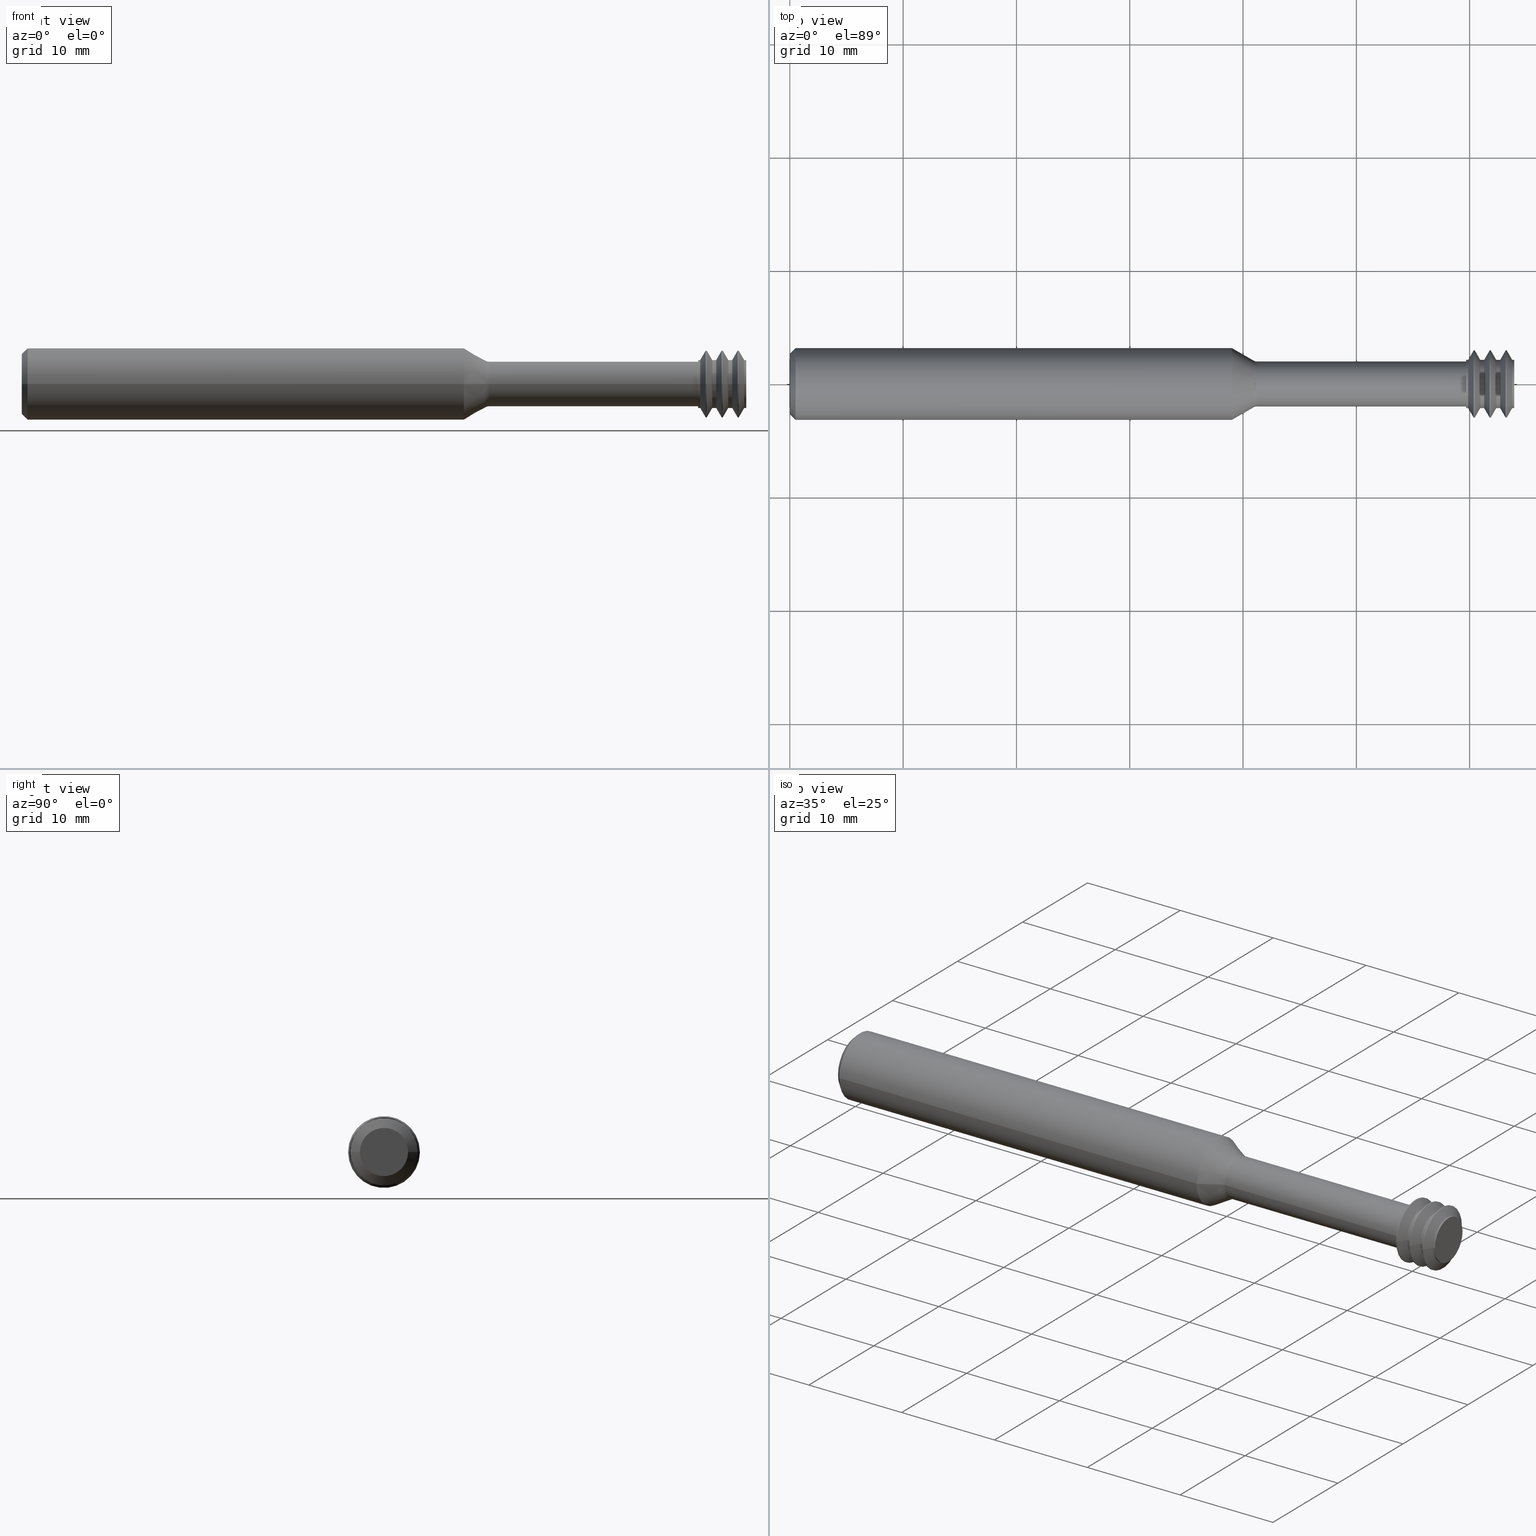
[diagram: canonical four-view strip — front | top / right | iso, engineering-drawing reading convention]
A machine part, canonical four-view strip (front | top / right | iso — engineering-drawing reading convention). The complete STEP part file that produces these views, byte-faithful:
ISO-10303-21;
HEADER;
FILE_DESCRIPTION (( 'STEP AP203' ),
    '1' );
FILE_NAME ('TMLR234-18EL.STEP',
    '2021-09-14T18:57:49',
    ( '' ),
    ( '' ),
    'SwSTEP 2.0',
    'SolidWorks 2020',
    '' );
FILE_SCHEMA (( 'CONFIG_CONTROL_DESIGN' ));
ENDSEC;

DATA;
#1 = DIRECTION ( 'NONE',  ( 0.4962165036752096969, 0.8681988144891413794, 0.000000000000000000 ) ) ;
#2 = ORIENTED_EDGE ( 'NONE', *, *, #555, .F. ) ;
#3 = DIRECTION ( 'NONE',  ( 0.000000000000000000, -1.000000000000000000, 0.000000000000000000 ) ) ;
#4 = DIRECTION ( 'NONE',  ( 0.000000000000000000, -1.000000000000000000, 0.000000000000000000 ) ) ;
#5 = EDGE_LOOP ( 'NONE', ( #593, #28, #1000, #430 ) ) ;
#6 = EDGE_CURVE ( 'NONE', #385, #342, #545, .T. ) ;
#7 = DIRECTION ( 'NONE',  ( 0.000000000000000000, -1.000000000000000000, 0.000000000000000000 ) ) ;
#8 = VECTOR ( 'NONE', #720, 39.37007874015748143 ) ;
#9 = PRODUCT_DEFINITION_FORMATION_WITH_SPECIFIED_SOURCE ( 'ANY', '', #243, .NOT_KNOWN. ) ;
#10 = CIRCLE ( 'NONE', #263, 0.08134936490538911824 ) ;
#11 = LINE ( 'NONE', #445, #12 ) ;
#12 = VECTOR ( 'NONE', #598, 39.37007874015748143 ) ;
#13 = CC_DESIGN_PERSON_AND_ORGANIZATION_ASSIGNMENT ( #37, #115, ( #9 ) ) ;
#14 = VERTEX_POINT ( 'NONE', #876 ) ;
#15 = DATE_AND_TIME ( #899, #431 ) ;
#16 = EDGE_CURVE ( 'NONE', #511, #409, #798, .T. ) ;
#17 = CARTESIAN_POINT ( 'NONE',  ( -2.347919765572537244E-20, -0.1048500000000000126, 1.406506848820735372E-17 ) ) ;
#18 = ORIENTED_EDGE ( 'NONE', *, *, #16, .T. ) ;
#19 = DIRECTION ( 'NONE',  ( 0.000000000000000000, -1.000000000000000000, 0.000000000000000000 ) ) ;
#20 = ADVANCED_FACE ( 'NONE', ( #529 ), #289, .T. ) ;
#21 = EDGE_LOOP ( 'NONE', ( #273, #290, #459, #600 ) ) ;
#22 = VERTEX_POINT ( 'NONE', #941 ) ;
#23 = DIRECTION ( 'NONE',  ( -1.000000000000000000, 2.239313081137374464E-19, -0.000000000000000000 ) ) ;
#24 = VECTOR ( 'NONE', #532, 39.37007874015748143 ) ;
#25 = ADVANCED_FACE ( 'NONE', ( #224 ), #533, .F. ) ;
#26 = AXIS2_PLACEMENT_3D ( 'NONE', #208, #594, #847 ) ;
#27 = AXIS2_PLACEMENT_3D ( 'NONE', #157, #317, #822 ) ;
#28 = ORIENTED_EDGE ( 'NONE', *, *, #220, .T. ) ;
#29 = ORIENTED_EDGE ( 'NONE', *, *, #16, .F. ) ;
#30 = DIRECTION ( 'NONE',  ( -1.000000000000000000, 2.239313081137374464E-19, -0.000000000000000000 ) ) ;
#31 = DIRECTION ( 'NONE',  ( -1.000000000000000000, 9.873466305187577438E-19, -0.000000000000000000 ) ) ;
#32 = VERTEX_POINT ( 'NONE', #136 ) ;
#33 = SHAPE_DEFINITION_REPRESENTATION ( #734, #725 ) ;
#34 = CARTESIAN_POINT ( 'NONE',  ( 2.491062222222221845, -7.574229523800104302E-19, 0.000000000000000000 ) ) ;
#35 = DIRECTION ( 'NONE',  ( -2.239313081137374464E-19, -1.000000000000000000, 0.000000000000000000 ) ) ;
#36 = ORIENTED_EDGE ( 'NONE', *, *, #423, .T. ) ;
#37 = PERSON_AND_ORGANIZATION ( #478, #782 ) ;
#38 = ADVANCED_FACE ( 'NONE', ( #881 ), #692, .T. ) ;
#39 = CARTESIAN_POINT ( 'NONE',  ( 2.454489999999999394, 0.08378605533475004530, 1.026083244788846534E-17 ) ) ;
#40 = CARTESIAN_POINT ( 'NONE',  ( 2.487362222222222030, -7.565944065399895531E-19, 0.000000000000000000 ) ) ;
#41 = CONICAL_SURFACE ( 'NONE', #641, 0.1170000000000000068, 1.051560874326581851 ) ;
#42 = LOCAL_TIME ( 11, 57, 49.00000000000000000, #926 ) ;
#43 = ORIENTED_EDGE ( 'NONE', *, *, #106, .T. ) ;
#44 = CONICAL_SURFACE ( 'NONE', #418, 0.08378605533475004530, 1.051560874326582073 ) ;
#45 = VECTOR ( 'NONE', #495, 39.37007874015748143 ) ;
#46 = ORIENTED_EDGE ( 'NONE', *, *, #528, .T. ) ;
#47 = DIRECTION ( 'NONE',  ( 0.000000000000000000, -1.000000000000000000, 0.000000000000000000 ) ) ;
#48 = ADVANCED_FACE ( 'NONE', ( #129 ), #248, .T. ) ;
#49 = DIRECTION ( 'NONE',  ( 0.000000000000000000, -1.000000000000000000, 0.000000000000000000 ) ) ;
#50 = ORIENTED_EDGE ( 'NONE', *, *, #122, .T. ) ;
#51 = ORIENTED_EDGE ( 'NONE', *, *, #355, .T. ) ;
#52 = DIRECTION ( 'NONE',  ( 0.000000000000000000, -1.000000000000000000, 0.000000000000000000 ) ) ;
#53 = CARTESIAN_POINT ( 'NONE',  ( 2.350000000000000089, 0.07800000000000002764, 9.552245033349358517E-18 ) ) ;
#54 = EDGE_CURVE ( 'NONE', #551, #201, #857, .T. ) ;
#55 = DIRECTION ( 'NONE',  ( 1.000000000000000000, -2.239313081137374464E-19, 0.000000000000000000 ) ) ;
#56 = ORIENTED_EDGE ( 'NONE', *, *, #462, .F. ) ;
#57 = DIRECTION ( 'NONE',  ( 0.000000000000000000, -1.000000000000000000, 0.000000000000000000 ) ) ;
#58 = DIRECTION ( 'NONE',  ( 0.000000000000000000, 1.000000000000000000, 0.000000000000000000 ) ) ;
#59 = ADVANCED_FACE ( 'NONE', ( #869 ), #1016, .F. ) ;
#60 = CARTESIAN_POINT ( 'NONE',  ( 0.02000000000000005940, -2.040747565273492847E-19, 0.000000000000000000 ) ) ;
#61 = CONICAL_SURFACE ( 'NONE', #888, 0.1248500000000000026, 0.7853981633974466137 ) ;
#62 = CIRCLE ( 'NONE', #937, 0.1170000000000000068 ) ;
#63 = ORIENTED_EDGE ( 'NONE', *, *, #849, .F. ) ;
#64 = DIRECTION ( 'NONE',  ( 0.000000000000000000, 1.000000000000000000, 0.000000000000000000 ) ) ;
#65 = CIRCLE ( 'NONE', #1053, 0.1170000000000000207 ) ;
#66 = AXIS2_PLACEMENT_3D ( 'NONE', #496, #827, #811 ) ;
#67 = CYLINDRICAL_SURFACE ( 'NONE', #1017, 0.08378605533475004530 ) ;
#68 = CARTESIAN_POINT ( 'NONE',  ( 2.398934444444444036, -0.08378605533475004530, 0.000000000000000000 ) ) ;
#69 = VERTEX_POINT ( 'NONE', #295 ) ;
#70 = DIRECTION ( 'NONE',  ( -1.000000000000000000, 2.239313081137374464E-19, -0.000000000000000000 ) ) ;
#71 = CYLINDRICAL_SURFACE ( 'NONE', #642, 0.08378605533475004530 ) ;
#72 = CARTESIAN_POINT ( 'NONE',  ( 2.294444444444444287, -0.08378605533475004530, 0.000000000000000000 ) ) ;
#73 = ORIENTED_EDGE ( 'NONE', *, *, #999, .T. ) ;
#74 = DIRECTION ( 'NONE',  ( 0.7071067811865486830, 0.7071067811865463515, 0.000000000000000000 ) ) ;
#75 = FACE_OUTER_BOUND ( 'NONE', #163, .T. ) ;
#76 = DIRECTION ( 'NONE',  ( 0.000000000000000000, -1.000000000000000000, 0.000000000000000000 ) ) ;
#77 = ORIENTED_EDGE ( 'NONE', *, *, #840, .F. ) ;
#78 = LENGTH_MEASURE_WITH_UNIT ( LENGTH_MEASURE( 0.02539999999999999897 ), #651 );
#79 = EDGE_CURVE ( 'NONE', #567, #69, #446, .T. ) ;
#80 = VECTOR ( 'NONE', #475, 39.37007874015748143 ) ;
#81 = CARTESIAN_POINT ( 'NONE',  ( 2.398934444444444036, -7.367926585886208838E-19, 0.000000000000000000 ) ) ;
#82 = AXIS2_PLACEMENT_3D ( 'NONE', #188, #774, #606 ) ;
#83 = CIRCLE ( 'NONE', #131, 0.08378605533475004530 ) ;
#84 = DIRECTION ( 'NONE',  ( 0.000000000000000000, -1.000000000000000000, 0.000000000000000000 ) ) ;
#85 = ORIENTED_EDGE ( 'NONE', *, *, #1060, .F. ) ;
#86 =( CONVERSION_BASED_UNIT ( 'INCH', #78 ) LENGTH_UNIT ( ) NAMED_UNIT ( #403 ) );
#87 = CARTESIAN_POINT ( 'NONE',  ( 2.398934444444444036, 0.08378605533475004530, 1.026083244788846534E-17 ) ) ;
#88 = ADVANCED_FACE ( 'NONE', ( #210 ), #454, .T. ) ;
#89 = CARTESIAN_POINT ( 'NONE',  ( 2.350000000000000089, 0.07800000000000002764, 9.552245033349358517E-18 ) ) ;
#90 = ORIENTED_EDGE ( 'NONE', *, *, #355, .F. ) ;
#91 = PERSON_AND_ORGANIZATION ( #478, #782 ) ;
#92 = CYLINDRICAL_SURFACE ( 'NONE', #820, 0.1248500000000000026 ) ;
#93 = EDGE_CURVE ( 'NONE', #22, #991, #711, .T. ) ;
#94 = DIRECTION ( 'NONE',  ( -1.000000000000000000, 2.239313081137374464E-19, -0.000000000000000000 ) ) ;
#95 = ORIENTED_EDGE ( 'NONE', *, *, #316, .T. ) ;
#96 = DIRECTION ( 'NONE',  ( -1.000000000000000000, 2.239313081137374464E-19, -0.000000000000000000 ) ) ;
#97 = VECTOR ( 'NONE', #253, 39.37007874015748143 ) ;
#98 = CIRCLE ( 'NONE', #262, 0.1170000000000000207 ) ;
#99 = CIRCLE ( 'NONE', #382, 0.1170000000000000068 ) ;
#100 = ORIENTED_EDGE ( 'NONE', *, *, #337, .T. ) ;
#101 = ADVANCED_FACE ( 'NONE', ( #325 ), #897, .T. ) ;
#102 = CARTESIAN_POINT ( 'NONE',  ( 1.535853419665399011, 0.1248500000000000026, 1.528971528735470422E-17 ) ) ;
#103 = ORIENTED_EDGE ( 'NONE', *, *, #1055, .F. ) ;
#104 = ORIENTED_EDGE ( 'NONE', *, *, #807, .T. ) ;
#105 = FACE_BOUND ( 'NONE', #755, .T. ) ;
#106 = EDGE_CURVE ( 'NONE', #69, #588, #145, .T. ) ;
#107 = ORIENTED_EDGE ( 'NONE', *, *, #549, .T. ) ;
#108 = PERSON_AND_ORGANIZATION ( #478, #782 ) ;
#109 = ORIENTED_EDGE ( 'NONE', *, *, #228, .T. ) ;
#110 = LINE ( 'NONE', #684, #891 ) ;
#111 = FACE_OUTER_BOUND ( 'NONE', #611, .T. ) ;
#112 = CIRCLE ( 'NONE', #146, 0.1048500000000000126 ) ;
#113 = CONICAL_SURFACE ( 'NONE', #234, 0.1248500000000000026, 0.7853981633974466137 ) ;
#114 = VERTEX_POINT ( 'NONE', #643 ) ;
#115 = PERSON_AND_ORGANIZATION_ROLE ( 'creator' ) ;
#116 = ORIENTED_EDGE ( 'NONE', *, *, #1060, .T. ) ;
#117 = CARTESIAN_POINT ( 'NONE',  ( 1.611198729810778385, -5.603939695627942701E-19, 0.000000000000000000 ) ) ;
#118 = DIRECTION ( 'NONE',  ( -1.000000000000000000, 2.239313081137374464E-19, -0.000000000000000000 ) ) ;
#119 = ORIENTED_EDGE ( 'NONE', *, *, #284, .T. ) ;
#120 = CARTESIAN_POINT ( 'NONE',  ( 2.510045555555555197, 0.08378605533475004530, 1.026083244788846534E-17 ) ) ;
#121 = DIRECTION ( 'NONE',  ( -1.000000000000000000, 2.239313081137374464E-19, -0.000000000000000000 ) ) ;
#122 = EDGE_CURVE ( 'NONE', #505, #201, #393, .T. ) ;
#123 = DIRECTION ( 'NONE',  ( 0.000000000000000000, 1.000000000000000000, 0.000000000000000000 ) ) ;
#124 = EDGE_CURVE ( 'NONE', #428, #358, #1048, .T. ) ;
#125 = ORIENTED_EDGE ( 'NONE', *, *, #865, .F. ) ;
#126 = DIRECTION ( 'NONE',  ( 0.000000000000000000, -1.000000000000000000, 0.000000000000000000 ) ) ;
#127 = CARTESIAN_POINT ( 'NONE',  ( 2.491062222222221845, -0.1170000000000000207, 0.000000000000000000 ) ) ;
#128 = CONICAL_SURFACE ( 'NONE', #852, 0.1170000000000000068, 1.051560874326581851 ) ;
#129 = FACE_OUTER_BOUND ( 'NONE', #693, .T. ) ;
#130 = AXIS2_PLACEMENT_3D ( 'NONE', #576, #912, #499 ) ;
#131 = AXIS2_PLACEMENT_3D ( 'NONE', #1045, #1034, #705 ) ;
#132 = ORIENTED_EDGE ( 'NONE', *, *, #361, .T. ) ;
#133 = DIRECTION ( 'NONE',  ( -1.000000000000000000, 2.239313081137374464E-19, -0.000000000000000000 ) ) ;
#134 = ADVANCED_FACE ( 'NONE', ( #901 ), #483, .T. ) ;
#135 = DIRECTION ( 'NONE',  ( 0.000000000000000000, -1.000000000000000000, 0.000000000000000000 ) ) ;
#136 = CARTESIAN_POINT ( 'NONE',  ( 2.379951111111110684, 0.1170000000000000207, 1.432836755002403469E-17 ) ) ;
#137 = EDGE_LOOP ( 'NONE', ( #46, #18, #535, #733 ) ) ;
#138 = DIRECTION ( 'NONE',  ( 0.000000000000000000, 1.000000000000000000, 0.000000000000000000 ) ) ;
#139 = CARTESIAN_POINT ( 'NONE',  ( 2.431806666666666672, 0.1170000000000000068, 0.000000000000000000 ) ) ;
#140 = CARTESIAN_POINT ( 'NONE',  ( 2.487362222222222030, -7.565944065399895531E-19, 0.000000000000000000 ) ) ;
#141 = ORIENTED_EDGE ( 'NONE', *, *, #826, .F. ) ;
#142 = CYLINDRICAL_SURFACE ( 'NONE', #453, 0.07800000000000002764 ) ;
#143 = DIRECTION ( 'NONE',  ( 0.000000000000000000, -1.000000000000000000, 0.000000000000000000 ) ) ;
#144 = DIRECTION ( 'NONE',  ( -1.000000000000000000, 9.873466305187577438E-19, -0.000000000000000000 ) ) ;
#145 = CIRCLE ( 'NONE', #746, 0.08378605533475004530 ) ;
#146 = AXIS2_PLACEMENT_3D ( 'NONE', #315, #797, #378 ) ;
#147 = ORIENTED_EDGE ( 'NONE', *, *, #1040, .T. ) ;
#148 = CARTESIAN_POINT ( 'NONE',  ( 2.350000000000000089, 0.08378605533475004530, 1.026083244788846534E-17 ) ) ;
#149 = CIRCLE ( 'NONE', #1018, 0.1170000000000000068 ) ;
#150 = CIRCLE ( 'NONE', #280, 0.08378605533475004530 ) ;
#151 = CARTESIAN_POINT ( 'NONE',  ( 2.350000000000000089, -7.258347044323575049E-19, 0.000000000000000000 ) ) ;
#152 = DIRECTION ( 'NONE',  ( 0.000000000000000000, -1.000000000000000000, 0.000000000000000000 ) ) ;
#153 = EDGE_CURVE ( 'NONE', #385, #739, #472, .T. ) ;
#154 = ORIENTED_EDGE ( 'NONE', *, *, #153, .T. ) ;
#155 = FACE_OUTER_BOUND ( 'NONE', #376, .T. ) ;
#156 = LINE ( 'NONE', #392, #781 ) ;
#157 = CARTESIAN_POINT ( 'NONE',  ( 2.294444444444444287, -7.133940762038165303E-19, 0.000000000000000000 ) ) ;
#158 = ORIENTED_EDGE ( 'NONE', *, *, #549, .F. ) ;
#159 = EDGE_CURVE ( 'NONE', #473, #269, #414, .T. ) ;
#160 = CARTESIAN_POINT ( 'NONE',  ( 2.376251111111110870, 0.1170000000000000068, 0.000000000000000000 ) ) ;
#161 = DIRECTION ( 'NONE',  ( -0.8660254037844373753, -0.5000000000000022204, 0.000000000000000000 ) ) ;
#162 = FACE_OUTER_BOUND ( 'NONE', #137, .T. ) ;
#163 = EDGE_LOOP ( 'NONE', ( #851, #367, #443, #621 ) ) ;
#164 = CALENDAR_DATE ( 2021, 14, 9 ) ;
#165 = AXIS2_PLACEMENT_3D ( 'NONE', #194, #442, #35 ) ;
#166 = DIRECTION ( 'NONE',  ( -1.000000000000000000, 2.239313081137374464E-19, -0.000000000000000000 ) ) ;
#167 = AXIS2_PLACEMENT_3D ( 'NONE', #671, #985, #240 ) ;
#168 = ADVANCED_FACE ( 'NONE', ( #989 ), #61, .T. ) ;
#169 = AXIS2_PLACEMENT_3D ( 'NONE', #732, #649, #84 ) ;
#170 = CYLINDRICAL_SURFACE ( 'NONE', #805, 0.1169999999999999929 ) ;
#171 = ORIENTED_EDGE ( 'NONE', *, *, #251, .F. ) ;
#172 = CARTESIAN_POINT ( 'NONE',  ( 1.611198729810778385, -5.603939695627942701E-19, 0.000000000000000000 ) ) ;
#173 = ADVANCED_FACE ( 'NONE', ( #162 ), #170, .T. ) ;
#174 = CARTESIAN_POINT ( 'NONE',  ( 1.611198729810778385, -0.08134936490538911824, 0.000000000000000000 ) ) ;
#175 = ORIENTED_EDGE ( 'NONE', *, *, #979, .T. ) ;
#176 = CYLINDRICAL_SURFACE ( 'NONE', #215, 0.08378605533475004530 ) ;
#177 = DIRECTION ( 'NONE',  ( -1.000000000000000000, 2.239313081137374464E-19, -0.000000000000000000 ) ) ;
#178 = EDGE_CURVE ( 'NONE', #225, #14, #384, .T. ) ;
#179 = ORIENTED_EDGE ( 'NONE', *, *, #786, .F. ) ;
#180 = PERSON_AND_ORGANIZATION ( #478, #782 ) ;
#181 = DIRECTION ( 'NONE',  ( -1.000000000000000000, 2.239313081137374464E-19, -0.000000000000000000 ) ) ;
#182 = TOROIDAL_SURFACE ( 'NONE', #165, 0.1029999999999999943, 0.02499999999999994588 ) ;
#183 = AXIS2_PLACEMENT_3D ( 'NONE', #461, #815, #135 ) ;
#184 = ORIENTED_EDGE ( 'NONE', *, *, #921, .T. ) ;
#185 = SECURITY_CLASSIFICATION_LEVEL ( 'unclassified' ) ;
#186 = EDGE_CURVE ( 'NONE', #216, #409, #237, .T. ) ;
#187 = ORIENTED_EDGE ( 'NONE', *, *, #54, .T. ) ;
#188 = CARTESIAN_POINT ( 'NONE',  ( 2.566989999999999661, -7.258347044323575049E-19, 0.000000000000000000 ) ) ;
#189 = EDGE_LOOP ( 'NONE', ( #413, #502, #109, #584 ) ) ;
#190 = DIRECTION ( 'NONE',  ( -0.8660254037844373753, 0.5000000000000022204, 6.123233995736793153E-17 ) ) ;
#191 = DIRECTION ( 'NONE',  ( -1.000000000000000000, 2.239313081137374464E-19, -0.000000000000000000 ) ) ;
#192 = ORIENTED_EDGE ( 'NONE', *, *, #316, .F. ) ;
#193 = CARTESIAN_POINT ( 'NONE',  ( 1.623698729810778119, 0.1029999999999999943, 1.261386203121773938E-17 ) ) ;
#194 = CARTESIAN_POINT ( 'NONE',  ( 1.623698729810778119, 0.000000000000000000, 0.000000000000000000 ) ) ;
#195 = VECTOR ( 'NONE', #945, 39.37007874015748143 ) ;
#196 = EDGE_CURVE ( 'NONE', #579, #201, #321, .T. ) ;
#197 = AXIS2_PLACEMENT_3D ( 'NONE', #235, #223, #1037 ) ;
#198 = AXIS2_PLACEMENT_3D ( 'NONE', #939, #526, #778 ) ;
#199 = DESIGN_CONTEXT ( 'detailed design', #971, 'design' ) ;
#200 = CIRCLE ( 'NONE', #518, 0.1170000000000000207 ) ;
#201 = VERTEX_POINT ( 'NONE', #246 ) ;
#202 = PLANE ( 'NONE',  #198 ) ;
#203 = EDGE_CURVE ( 'NONE', #256, #32, #506, .T. ) ;
#204 = FACE_OUTER_BOUND ( 'NONE', #984, .T. ) ;
#205 = EDGE_CURVE ( 'NONE', #225, #269, #850, .T. ) ;
#206 = VERTEX_POINT ( 'NONE', #89 ) ;
#207 = ORIENTED_EDGE ( 'NONE', *, *, #675, .T. ) ;
#208 = CARTESIAN_POINT ( 'NONE',  ( 0.02000000000000005940, -2.040747565273492847E-19, 0.000000000000000000 ) ) ;
#209 = DIRECTION ( 'NONE',  ( 0.000000000000000000, -1.000000000000000000, 0.000000000000000000 ) ) ;
#210 = FACE_OUTER_BOUND ( 'NONE', #541, .T. ) ;
#211 = ORIENTED_EDGE ( 'NONE', *, *, #54, .F. ) ;
#212 = DIRECTION ( 'NONE',  ( -1.000000000000000000, 9.873466305187577438E-19, -0.000000000000000000 ) ) ;
#213 = CARTESIAN_POINT ( 'NONE',  ( 2.431806666666666672, -0.1170000000000000068, 1.432836755002403469E-17 ) ) ;
#214 = EDGE_LOOP ( 'NONE', ( #930, #36 ) ) ;
#215 = AXIS2_PLACEMENT_3D ( 'NONE', #911, #670, #406 ) ;
#216 = VERTEX_POINT ( 'NONE', #408 ) ;
#217 = FACE_OUTER_BOUND ( 'NONE', #967, .T. ) ;
#218 = DIRECTION ( 'NONE',  ( 0.000000000000000000, 1.000000000000000000, 0.000000000000000000 ) ) ;
#219 = ORIENTED_EDGE ( 'NONE', *, *, #304, .F. ) ;
#220 = EDGE_CURVE ( 'NONE', #32, #256, #986, .T. ) ;
#221 = ORIENTED_EDGE ( 'NONE', *, *, #555, .T. ) ;
#222 = CARTESIAN_POINT ( 'NONE',  ( 2.510045555555555197, -7.616739150457028330E-19, 0.000000000000000000 ) ) ;
#223 = DIRECTION ( 'NONE',  ( 1.000000000000000000, 0.000000000000000000, 0.000000000000000000 ) ) ;
#224 = FACE_OUTER_BOUND ( 'NONE', #214, .T. ) ;
#225 = VERTEX_POINT ( 'NONE', #174 ) ;
#226 = CARTESIAN_POINT ( 'NONE',  ( 2.510045555555555197, 0.08378605533475004530, 1.026083244788846534E-17 ) ) ;
#227 = FACE_OUTER_BOUND ( 'NONE', #721, .T. ) ;
#228 = EDGE_CURVE ( 'NONE', #902, #256, #501, .T. ) ;
#229 = DIRECTION ( 'NONE',  ( -1.000000000000000000, 2.239313081137374464E-19, -0.000000000000000000 ) ) ;
#230 = AXIS2_PLACEMENT_3D ( 'NONE', #241, #489, #404 ) ;
#231 = LOCAL_TIME ( 11, 57, 49.00000000000000000, #604 ) ;
#232 = ORIENTED_EDGE ( 'NONE', *, *, #757, .F. ) ;
#233 = DIRECTION ( 'NONE',  ( -1.000000000000000000, 2.239313081137374464E-19, -0.000000000000000000 ) ) ;
#234 = AXIS2_PLACEMENT_3D ( 'NONE', #895, #456, #138 ) ;
#235 = CARTESIAN_POINT ( 'NONE',  ( 2.516989999999999839, -7.632289935742705271E-19, 0.000000000000000000 ) ) ;
#236 = CC_DESIGN_PERSON_AND_ORGANIZATION_ASSIGNMENT ( #108, #591, ( #9 ) ) ;
#237 = LINE ( 'NONE', #477, #297 ) ;
#238 = VERTEX_POINT ( 'NONE', #1043 ) ;
#239 = CARTESIAN_POINT ( 'NONE',  ( 0.000000000000000000, -1.995961303650745011E-19, 0.000000000000000000 ) ) ;
#240 = DIRECTION ( 'NONE',  ( 0.000000000000000000, -1.000000000000000000, 0.000000000000000000 ) ) ;
#241 = CARTESIAN_POINT ( 'NONE',  ( 1.611198729810778385, -5.603939695627942701E-19, 0.000000000000000000 ) ) ;
#242 = VERTEX_POINT ( 'NONE', #306 ) ;
#243 = PRODUCT ( 'TMLR234-18EL', 'TMLR234-18EL', '', ( #410 ) ) ;
#244 = EDGE_CURVE ( 'NONE', #629, #717, #893, .T. ) ;
#245 = LINE ( 'NONE', #87, #45 ) ;
#246 = CARTESIAN_POINT ( 'NONE',  ( 0.02000000000000005940, -0.1248500000000000026, 1.528971528735470422E-17 ) ) ;
#247 = ORIENTED_EDGE ( 'NONE', *, *, #79, .T. ) ;
#248 = CONICAL_SURFACE ( 'NONE', #1014, 0.1170000000000000068, 1.051560874326581851 ) ;
#249 = DATE_AND_TIME ( #164, #623 ) ;
#250 = AXIS2_PLACEMENT_3D ( 'NONE', #457, #300, #955 ) ;
#251 = EDGE_CURVE ( 'NONE', #342, #238, #200, .T. ) ;
#252 = AXIS2_PLACEMENT_3D ( 'NONE', #117, #515, #687 ) ;
#253 = DIRECTION ( 'NONE',  ( 0.4962165036752096969, -0.8681988144891413794, 1.063236899187653683E-16 ) ) ;
#254 = EDGE_LOOP ( 'NONE', ( #268, #790, #817, #77 ) ) ;
#255 = CARTESIAN_POINT ( 'NONE',  ( 1.623698729810778119, -5.631931109142160038E-19, 0.000000000000000000 ) ) ;
#256 = VERTEX_POINT ( 'NONE', #436 ) ;
#257 = CARTESIAN_POINT ( 'NONE',  ( 2.468378888888888678, -7.523434438742970539E-19, 0.000000000000000000 ) ) ;
#258 = CARTESIAN_POINT ( 'NONE',  ( 2.350000000000000089, -7.258347044323575049E-19, 0.000000000000000000 ) ) ;
#259 = EDGE_CURVE ( 'NONE', #216, #845, #11, .T. ) ;
#260 = EDGE_LOOP ( 'NONE', ( #29, #132, #455, #424 ) ) ;
#261 = DIRECTION ( 'NONE',  ( -0.4962165036752094749, 0.8681988144891416015, 1.063236899187653930E-16 ) ) ;
#262 = AXIS2_PLACEMENT_3D ( 'NONE', #602, #94, #357 ) ;
#263 = AXIS2_PLACEMENT_3D ( 'NONE', #814, #133, #303 ) ;
#264 = EDGE_LOOP ( 'NONE', ( #794, #440, #832, #962 ) ) ;
#265 = DATE_AND_TIME ( #354, #519 ) ;
#266 = CARTESIAN_POINT ( 'NONE',  ( 2.454489999999999394, -0.08378605533475004530, 0.000000000000000000 ) ) ;
#267 = DIRECTION ( 'NONE',  ( 1.000000000000000000, -2.239313081137374464E-19, 0.000000000000000000 ) ) ;
#268 = ORIENTED_EDGE ( 'NONE', *, *, #702, .F. ) ;
#269 = VERTEX_POINT ( 'NONE', #614 ) ;
#270 = EDGE_CURVE ( 'NONE', #739, #385, #609, .T. ) ;
#271 = CARTESIAN_POINT ( 'NONE',  ( 2.566989999999999661, -7.258347044323575049E-19, 0.000000000000000000 ) ) ;
#272 = DIRECTION ( 'NONE',  ( 0.000000000000000000, -1.000000000000000000, 0.000000000000000000 ) ) ;
#273 = ORIENTED_EDGE ( 'NONE', *, *, #1055, .T. ) ;
#274 = DATE_AND_TIME ( #439, #231 ) ;
#275 = EDGE_CURVE ( 'NONE', #845, #902, #150, .T. ) ;
#276 = DIRECTION ( 'NONE',  ( -1.000000000000000000, 2.239313081137374464E-19, -0.000000000000000000 ) ) ;
#277 = CARTESIAN_POINT ( 'NONE',  ( 2.566989999999999661, -0.1169999999999999929, 0.000000000000000000 ) ) ;
#278 = AXIS2_PLACEMENT_3D ( 'NONE', #706, #537, #719 ) ;
#279 = VECTOR ( 'NONE', #70, 39.37007874015748143 ) ;
#280 = AXIS2_PLACEMENT_3D ( 'NONE', #333, #701, #944 ) ;
#281 = CARTESIAN_POINT ( 'NONE',  ( 2.183333333333333570, -6.885128197467345811E-19, 0.000000000000000000 ) ) ;
#282 = CARTESIAN_POINT ( 'NONE',  ( 2.357267777777777518, -0.08378605533475004530, 0.000000000000000000 ) ) ;
#283 = DIRECTION ( 'NONE',  ( 0.000000000000000000, -1.000000000000000000, 0.000000000000000000 ) ) ;
#284 = EDGE_CURVE ( 'NONE', #216, #428, #421, .T. ) ;
#285 = DIRECTION ( 'NONE',  ( 0.000000000000000000, -1.000000000000000000, 0.000000000000000000 ) ) ;
#286 = EDGE_LOOP ( 'NONE', ( #910, #56, #298, #946 ) ) ;
#287 = DIRECTION ( 'NONE',  ( 0.000000000000000000, -1.000000000000000000, 0.000000000000000000 ) ) ;
#288 = CARTESIAN_POINT ( 'NONE',  ( 2.435506666666666042, -0.1170000000000000207, 0.000000000000000000 ) ) ;
#289 = CYLINDRICAL_SURFACE ( 'NONE', #379, 0.1169999999999999929 ) ;
#290 = ORIENTED_EDGE ( 'NONE', *, *, #849, .T. ) ;
#291 = LINE ( 'NONE', #148, #625 ) ;
#292 = DIRECTION ( 'NONE',  ( -1.000000000000000000, 2.239313081137374464E-19, -0.000000000000000000 ) ) ;
#293 = ADVANCED_FACE ( 'NONE', ( #204 ), #41, .T. ) ;
#294 = VECTOR ( 'NONE', #305, 39.37007874015748143 ) ;
#295 = CARTESIAN_POINT ( 'NONE',  ( 2.350000000000000089, 0.08378605533475004530, 1.026083244788846534E-17 ) ) ;
#296 = AXIS2_PLACEMENT_3D ( 'NONE', #465, #800, #64 ) ;
#297 = VECTOR ( 'NONE', #1, 39.37007874015748143 ) ;
#298 = ORIENTED_EDGE ( 'NONE', *, *, #959, .T. ) ;
#299 = FACE_OUTER_BOUND ( 'NONE', #1028, .T. ) ;
#300 = DIRECTION ( 'NONE',  ( -1.000000000000000000, 2.239313081137374464E-19, -0.000000000000000000 ) ) ;
#301 = VERTEX_POINT ( 'NONE', #288 ) ;
#302 = ORIENTED_EDGE ( 'NONE', *, *, #865, .T. ) ;
#303 = DIRECTION ( 'NONE',  ( 0.000000000000000000, -1.000000000000000000, 0.000000000000000000 ) ) ;
#304 = EDGE_CURVE ( 'NONE', #629, #114, #412, .T. ) ;
#305 = DIRECTION ( 'NONE',  ( -1.000000000000000000, 9.873466305187577438E-19, -0.000000000000000000 ) ) ;
#306 = CARTESIAN_POINT ( 'NONE',  ( 2.516989999999999839, 0.08378605533475004530, 1.026083244788846534E-17 ) ) ;
#307 = ORIENTED_EDGE ( 'NONE', *, *, #776, .T. ) ;
#308 = CARTESIAN_POINT ( 'NONE',  ( 2.350000000000000089, -0.07800000000000002764, 0.000000000000000000 ) ) ;
#309 = CARTESIAN_POINT ( 'NONE',  ( 2.350000000000000089, -7.258347044323575049E-19, 0.000000000000000000 ) ) ;
#310 = EDGE_CURVE ( 'NONE', #991, #22, #62, .T. ) ;
#311 = CARTESIAN_POINT ( 'NONE',  ( 2.431806666666666672, -0.1170000000000000068, 1.432836755002403469E-17 ) ) ;
#312 = APPROVAL_PERSON_ORGANIZATION ( #359, #1025, #861 ) ;
#313 = EDGE_LOOP ( 'NONE', ( #63, #107, #860, #141 ) ) ;
#314 = APPROVAL_ROLE ( '' ) ;
#315 = CARTESIAN_POINT ( 'NONE',  ( 0.000000000000000000, -1.995961303650745011E-19, 0.000000000000000000 ) ) ;
#316 = EDGE_CURVE ( 'NONE', #342, #114, #848, .T. ) ;
#317 = DIRECTION ( 'NONE',  ( -1.000000000000000000, 2.239313081137374464E-19, -0.000000000000000000 ) ) ;
#318 = ORIENTED_EDGE ( 'NONE', *, *, #337, .F. ) ;
#319 = DIRECTION ( 'NONE',  ( -1.000000000000000000, 2.239313081137374464E-19, -0.000000000000000000 ) ) ;
#320 = DIRECTION ( 'NONE',  ( -1.000000000000000000, 2.239313081137374464E-19, -0.000000000000000000 ) ) ;
#321 = LINE ( 'NONE', #653, #605 ) ;
#322 = ADVANCED_FACE ( 'NONE', ( #111 ), #618, .T. ) ;
#323 = EDGE_LOOP ( 'NONE', ( #147, #673 ) ) ;
#324 = CYLINDRICAL_SURFACE ( 'NONE', #130, 0.08378605533475004530 ) ;
#325 = FACE_OUTER_BOUND ( 'NONE', #313, .T. ) ;
#326 = CC_DESIGN_DATE_AND_TIME_ASSIGNMENT ( #759, #853, ( #1015 ) ) ;
#327 = EDGE_LOOP ( 'NONE', ( #917, #43 ) ) ;
#328 = APPROVAL_PERSON_ORGANIZATION ( #91, #521, #646 ) ;
#329 = DIRECTION ( 'NONE',  ( 0.000000000000000000, 0.000000000000000000, 1.000000000000000000 ) ) ;
#330 = CARTESIAN_POINT ( 'NONE',  ( 1.623698729810778119, 0.000000000000000000, 0.000000000000000000 ) ) ;
#331 = VECTOR ( 'NONE', #694, 39.37007874015748143 ) ;
#332 = VECTOR ( 'NONE', #816, 39.37007874015748143 ) ;
#333 = CARTESIAN_POINT ( 'NONE',  ( 2.398934444444444036, -7.367926585886208838E-19, 0.000000000000000000 ) ) ;
#334 = ORIENTED_EDGE ( 'NONE', *, *, #921, .F. ) ;
#335 = DIRECTION ( 'NONE',  ( -1.000000000000000000, 2.239313081137374464E-19, -0.000000000000000000 ) ) ;
#336 = DIRECTION ( 'NONE',  ( -1.000000000000000000, 2.239313081137374464E-19, -0.000000000000000000 ) ) ;
#337 = EDGE_CURVE ( 'NONE', #114, #744, #589, .T. ) ;
#338 = EDGE_LOOP ( 'NONE', ( #942, #104, #996, #463 ) ) ;
#339 = CYLINDRICAL_SURFACE ( 'NONE', #344, 0.07800000000000002764 ) ;
#340 = CC_DESIGN_PERSON_AND_ORGANIZATION_ASSIGNMENT ( #764, #690, ( #1015 ) ) ;
#341 = ADVANCED_FACE ( 'NONE', ( #747 ), #128, .T. ) ;
#342 = VERTEX_POINT ( 'NONE', #127 ) ;
#343 = DIRECTION ( 'NONE',  ( 0.000000000000000000, -1.000000000000000000, 0.000000000000000000 ) ) ;
#344 = AXIS2_PLACEMENT_3D ( 'NONE', #736, #177, #586 ) ;
#345 = CONICAL_SURFACE ( 'NONE', #252, 0.08134936490538911824, 0.5235987755983014802 ) ;
#346 = VECTOR ( 'NONE', #493, 39.37007874015748143 ) ;
#347 = EDGE_CURVE ( 'NONE', #783, #22, #831, .T. ) ;
#348 = ORIENTED_EDGE ( 'NONE', *, *, #178, .F. ) ;
#349 = CALENDAR_DATE ( 2021, 14, 9 ) ;
#350 = FACE_OUTER_BOUND ( 'NONE', #405, .T. ) ;
#351 = DIRECTION ( 'NONE',  ( 0.000000000000000000, 1.000000000000000000, 0.000000000000000000 ) ) ;
#352 = CC_DESIGN_DATE_AND_TIME_ASSIGNMENT ( #249, #728, ( #373 ) ) ;
#353 = EDGE_LOOP ( 'NONE', ( #766, #645, #871, #73 ) ) ;
#354 = CALENDAR_DATE ( 2021, 14, 9 ) ;
#355 = EDGE_CURVE ( 'NONE', #206, #866, #836, .T. ) ;
#356 = DIRECTION ( 'NONE',  ( 0.000000000000000000, -1.000000000000000000, 0.000000000000000000 ) ) ;
#357 = DIRECTION ( 'NONE',  ( 0.000000000000000000, -1.000000000000000000, 0.000000000000000000 ) ) ;
#358 = VERTEX_POINT ( 'NONE', #213 ) ;
#359 = PERSON_AND_ORGANIZATION ( #478, #782 ) ;
#360 = LINE ( 'NONE', #444, #331 ) ;
#361 = EDGE_CURVE ( 'NONE', #511, #301, #98, .T. ) ;
#362 = CARTESIAN_POINT ( 'NONE',  ( 2.487362222222222030, -0.1170000000000000068, 1.432836755002403469E-17 ) ) ;
#363 = VECTOR ( 'NONE', #366, 39.37007874015748143 ) ;
#364 = CONICAL_SURFACE ( 'NONE', #695, 0.1170000000000000068, 1.051560874326581851 ) ;
#365 = CIRCLE ( 'NONE', #804, 0.02499999999999993894 ) ;
#366 = DIRECTION ( 'NONE',  ( -1.000000000000000000, 9.873466305187577438E-19, -0.000000000000000000 ) ) ;
#367 = ORIENTED_EDGE ( 'NONE', *, *, #973, .F. ) ;
#368 = CARTESIAN_POINT ( 'NONE',  ( 2.398934444444444036, 0.08378605533475004530, 1.229459999895625156E-17 ) ) ;
#369 = CARTESIAN_POINT ( 'NONE',  ( 2.491062222222221845, -7.574229523800104302E-19, 0.000000000000000000 ) ) ;
#370 = CARTESIAN_POINT ( 'NONE',  ( 2.510045555555555197, -0.08378605533475004530, 0.000000000000000000 ) ) ;
#371 = ORIENTED_EDGE ( 'NONE', *, *, #840, .T. ) ;
#372 = CARTESIAN_POINT ( 'NONE',  ( 2.398934444444444036, -0.08378605533475004530, 0.000000000000000000 ) ) ;
#373 = PRODUCT_DEFINITION ( 'UNKNOWN', '', #9, #199 ) ;
#374 = DIRECTION ( 'NONE',  ( -1.000000000000000000, 2.239313081137374464E-19, -0.000000000000000000 ) ) ;
#375 = DIRECTION ( 'NONE',  ( 0.000000000000000000, -1.000000000000000000, 0.000000000000000000 ) ) ;
#376 = EDGE_LOOP ( 'NONE', ( #154, #302, #171, #936 ) ) ;
#377 = LINE ( 'NONE', #226, #787 ) ;
#378 = DIRECTION ( 'NONE',  ( -2.239313081137374464E-19, -1.000000000000000000, 0.000000000000000000 ) ) ;
#379 = AXIS2_PLACEMENT_3D ( 'NONE', #619, #144, #285 ) ;
#380 = VECTOR ( 'NONE', #775, 39.37007874015748143 ) ;
#381 = DIRECTION ( 'NONE',  ( -1.000000000000000000, 2.239313081137374464E-19, -0.000000000000000000 ) ) ;
#382 = AXIS2_PLACEMENT_3D ( 'NONE', #1059, #181, #3 ) ;
#383 = ADVANCED_FACE ( 'NONE', ( #668 ), #182, .F. ) ;
#384 = CIRCLE ( 'NONE', #230, 0.08134936490538911824 ) ;
#385 = VERTEX_POINT ( 'NONE', #933 ) ;
#386 = CARTESIAN_POINT ( 'NONE',  ( 0.02000000000000005940, 0.1248500000000000026, 0.000000000000000000 ) ) ;
#387 = CARTESIAN_POINT ( 'NONE',  ( 2.435506666666666042, 0.1170000000000000207, 1.432836755002403469E-17 ) ) ;
#388 = CARTESIAN_POINT ( 'NONE',  ( 2.379951111111110684, -7.325416959229284810E-19, 0.000000000000000000 ) ) ;
#389 = EDGE_CURVE ( 'NONE', #256, #22, #688, .T. ) ;
#390 = ORIENTED_EDGE ( 'NONE', *, *, #122, .F. ) ;
#391 = DIRECTION ( 'NONE',  ( -1.000000000000000000, 2.239313081137374464E-19, -0.000000000000000000 ) ) ;
#392 = CARTESIAN_POINT ( 'NONE',  ( 2.350000000000000089, -0.08378605533475004530, 0.000000000000000000 ) ) ;
#393 = LINE ( 'NONE', #561, #332 ) ;
#394 = ORIENTED_EDGE ( 'NONE', *, *, #714, .F. ) ;
#395 = DIRECTION ( 'NONE',  ( 0.000000000000000000, -1.000000000000000000, 0.000000000000000000 ) ) ;
#396 = ADVANCED_FACE ( 'NONE', ( #970 ), #748, .T. ) ;
#397 = CARTESIAN_POINT ( 'NONE',  ( 2.350000000000000089, -7.258347044323575049E-19, 0.000000000000000000 ) ) ;
#398 = CIRCLE ( 'NONE', #197, 0.08378605533475004530 ) ;
#399 = ORIENTED_EDGE ( 'NONE', *, *, #757, .T. ) ;
#400 = APPROVAL_STATUS ( 'not_yet_approved' ) ;
#401 = CIRCLE ( 'NONE', #954, 0.08378605533475004530 ) ;
#402 = DIRECTION ( 'NONE',  ( 0.000000000000000000, 1.000000000000000000, 0.000000000000000000 ) ) ;
#403 = DIMENSIONAL_EXPONENTS ( 1.000000000000000000, 0.000000000000000000, 0.000000000000000000, 0.000000000000000000, 0.000000000000000000, 0.000000000000000000, 0.000000000000000000 ) ;
#404 = DIRECTION ( 'NONE',  ( 0.000000000000000000, -1.000000000000000000, 0.000000000000000000 ) ) ;
#405 = EDGE_LOOP ( 'NONE', ( #558, #616, #1039, #914 ) ) ;
#406 = DIRECTION ( 'NONE',  ( 0.000000000000000000, -1.000000000000000000, 0.000000000000000000 ) ) ;
#407 = DIRECTION ( 'NONE',  ( -1.000000000000000000, 2.239313081137374464E-19, -0.000000000000000000 ) ) ;
#408 = CARTESIAN_POINT ( 'NONE',  ( 2.412823333333333320, 0.08378605533475004530, 1.026083244788846534E-17 ) ) ;
#409 = VERTEX_POINT ( 'NONE', #139 ) ;
#410 = MECHANICAL_CONTEXT ( 'NONE', #466, 'mechanical' ) ;
#411 = FACE_OUTER_BOUND ( 'NONE', #286, .T. ) ;
#412 = LINE ( 'NONE', #362, #969 ) ;
#413 = ORIENTED_EDGE ( 'NONE', *, *, #675, .F. ) ;
#414 = CIRCLE ( 'NONE', #769, 0.07800000000000006928 ) ;
#415 = APPROVAL_PERSON_ORGANIZATION ( #568, #582, #314 ) ;
#416 = PERSON_AND_ORGANIZATION ( #478, #782 ) ;
#417 = ADVANCED_FACE ( 'NONE', ( #1046 ), #364, .T. ) ;
#418 = AXIS2_PLACEMENT_3D ( 'NONE', #482, #1042, #395 ) ;
#419 = FACE_OUTER_BOUND ( 'NONE', #254, .T. ) ;
#420 = CIRCLE ( 'NONE', #938, 0.08378605533475004530 ) ;
#421 = CIRCLE ( 'NONE', #1032, 0.08378605533475004530 ) ;
#422 = ORIENTED_EDGE ( 'NONE', *, *, #786, .T. ) ;
#423 = EDGE_CURVE ( 'NONE', #242, #1008, #398, .T. ) ;
#424 = ORIENTED_EDGE ( 'NONE', *, *, #999, .F. ) ;
#425 = DIRECTION ( 'NONE',  ( 0.000000000000000000, -1.000000000000000000, 0.000000000000000000 ) ) ;
#426 = ORIENTED_EDGE ( 'NONE', *, *, #178, .T. ) ;
#427 = COORDINATED_UNIVERSAL_TIME_OFFSET ( 8, 0, .BEHIND. ) ;
#428 = VERTEX_POINT ( 'NONE', #548 ) ;
#429 = LINE ( 'NONE', #39, #1035 ) ;
#430 = ORIENTED_EDGE ( 'NONE', *, *, #310, .F. ) ;
#431 = LOCAL_TIME ( 11, 57, 49.00000000000000000, #655 ) ;
#432 = ORIENTED_EDGE ( 'NONE', *, *, #630, .T. ) ;
#433 = LINE ( 'NONE', #767, #837 ) ;
#434 = CIRCLE ( 'NONE', #451, 0.08378605533475004530 ) ;
#435 = VECTOR ( 'NONE', #680, 39.37007874015748143 ) ;
#436 = CARTESIAN_POINT ( 'NONE',  ( 2.379951111111110684, -0.1170000000000000207, 0.000000000000000000 ) ) ;
#437 = AXIS2_PLACEMENT_3D ( 'NONE', #622, #617, #947 ) ;
#438 = ORIENTED_EDGE ( 'NONE', *, *, #743, .T. ) ;
#439 = CALENDAR_DATE ( 2021, 14, 9 ) ;
#440 = ORIENTED_EDGE ( 'NONE', *, *, #196, .T. ) ;
#441 = DIRECTION ( 'NONE',  ( -2.742367597103682651E-35, -1.224646799147353207E-16, 1.000000000000000000 ) ) ;
#442 = DIRECTION ( 'NONE',  ( -1.000000000000000000, 2.239313081137374464E-19, -0.000000000000000000 ) ) ;
#443 = ORIENTED_EDGE ( 'NONE', *, *, #486, .T. ) ;
#444 = CARTESIAN_POINT ( 'NONE',  ( 2.238888888888888928, -0.08378605533475004530, 0.000000000000000000 ) ) ;
#445 = CARTESIAN_POINT ( 'NONE',  ( 2.238888888888888928, 0.08378605533475004530, 1.026083244788846534E-17 ) ) ;
#446 = LINE ( 'NONE', #716, #195 ) ;
#447 = ORIENTED_EDGE ( 'NONE', *, *, #807, .F. ) ;
#448 = ADVANCED_FACE ( 'NONE', ( #75 ), #1052, .T. ) ;
#449 = FACE_OUTER_BOUND ( 'NONE', #260, .T. ) ;
#450 = DIRECTION ( 'NONE',  ( 1.000000000000000000, -2.239313081137374464E-19, 0.000000000000000000 ) ) ;
#451 = AXIS2_PLACEMENT_3D ( 'NONE', #915, #166, #7 ) ;
#452 = AXIS2_PLACEMENT_3D ( 'NONE', #753, #336, #993 ) ;
#453 = AXIS2_PLACEMENT_3D ( 'NONE', #542, #952, #879 ) ;
#454 = CYLINDRICAL_SURFACE ( 'NONE', #570, 0.08378605533475004530 ) ;
#455 = ORIENTED_EDGE ( 'NONE', *, *, #504, .T. ) ;
#456 = DIRECTION ( 'NONE',  ( 1.000000000000000000, -2.239313081137374464E-19, 0.000000000000000000 ) ) ;
#457 = CARTESIAN_POINT ( 'NONE',  ( 2.435506666666666042, -7.449823241514693593E-19, 0.000000000000000000 ) ) ;
#458 = ORIENTED_EDGE ( 'NONE', *, *, #583, .T. ) ;
#459 = ORIENTED_EDGE ( 'NONE', *, *, #776, .F. ) ;
#460 = CYLINDRICAL_SURFACE ( 'NONE', #768, 0.08378605533475004530 ) ;
#461 = CARTESIAN_POINT ( 'NONE',  ( 2.350000000000000089, -7.258347044323575049E-19, 0.000000000000000000 ) ) ;
#462 = EDGE_CURVE ( 'NONE', #866, #206, #870, .T. ) ;
#463 = ORIENTED_EDGE ( 'NONE', *, *, #205, .F. ) ;
#464 = ORIENTED_EDGE ( 'NONE', *, *, #577, .F. ) ;
#465 = CARTESIAN_POINT ( 'NONE',  ( 2.487362222222222030, -7.565944065399895531E-19, 0.000000000000000000 ) ) ;
#466 = APPLICATION_CONTEXT ( 'configuration controlled 3d designs of mechanical parts and assemblies' ) ;
#467 = CARTESIAN_POINT ( 'NONE',  ( 0.02000000000000005940, 0.1248500000000000026, 0.000000000000000000 ) ) ;
#468 = EDGE_CURVE ( 'NONE', #579, #596, #112, .T. ) ;
#469 = VECTOR ( 'NONE', #607, 39.37007874015748143 ) ;
#470 = DIRECTION ( 'NONE',  ( -1.000000000000000000, 2.239313081137374464E-19, -0.000000000000000000 ) ) ;
#471 = AXIS2_PLACEMENT_3D ( 'NONE', #222, #474, #1041 ) ;
#472 = CIRCLE ( 'NONE', #169, 0.08378605533475004530 ) ;
#473 = VERTEX_POINT ( 'NONE', #636 ) ;
#474 = DIRECTION ( 'NONE',  ( -1.000000000000000000, 2.239313081137374464E-19, -0.000000000000000000 ) ) ;
#475 = DIRECTION ( 'NONE',  ( -1.000000000000000000, 9.873466305187577438E-19, -0.000000000000000000 ) ) ;
#476 = UNCERTAINTY_MEASURE_WITH_UNIT (LENGTH_MEASURE( 1.000000000000000082E-05 ), #86, 'distance_accuracy_value', 'NONE');
#477 = CARTESIAN_POINT ( 'NONE',  ( 2.431806666666666672, 0.1170000000000000068, 0.000000000000000000 ) ) ;
#478 = PERSON ( 'UNSPECIFIED', 'UNSPECIFIED', 'UNSPECIFIED', ('UNSPECIFIED'), ('UNSPECIFIED'), ('UNSPECIFIED') ) ;
#479 = ORIENTED_EDGE ( 'NONE', *, *, #752, .T. ) ;
#480 = LINE ( 'NONE', #710, #678 ) ;
#481 = ADVANCED_FACE ( 'NONE', ( #544 ), #950, .T. ) ;
#482 = CARTESIAN_POINT ( 'NONE',  ( 2.398934444444444036, -7.367926585886208838E-19, 0.000000000000000000 ) ) ;
#483 = CYLINDRICAL_SURFACE ( 'NONE', #658, 0.1248500000000000026 ) ;
#484 = ORIENTED_EDGE ( 'NONE', *, *, #994, .T. ) ;
#485 = LINE ( 'NONE', #160, #346 ) ;
#486 = EDGE_CURVE ( 'NONE', #1008, #385, #156, .T. ) ;
#487 = FACE_OUTER_BOUND ( 'NONE', #957, .T. ) ;
#488 = AXIS2_PLACEMENT_3D ( 'NONE', #992, #329, #580 ) ;
#489 = DIRECTION ( 'NONE',  ( -1.000000000000000000, 2.239313081137374464E-19, -0.000000000000000000 ) ) ;
#490 = TOROIDAL_SURFACE ( 'NONE', #661, 0.1029999999999999943, 0.02499999999999994588 ) ;
#491 = AXIS2_PLACEMENT_3D ( 'NONE', #559, #700, #883 ) ;
#492 = ORIENTED_EDGE ( 'NONE', *, *, #259, .T. ) ;
#493 = DIRECTION ( 'NONE',  ( 0.4962165036752096969, 0.8681988144891413794, 0.000000000000000000 ) ) ;
#494 = AXIS2_PLACEMENT_3D ( 'NONE', #1058, #319, #585 ) ;
#495 = DIRECTION ( 'NONE',  ( -0.4962165036752094749, 0.8681988144891416015, 1.063236899187653930E-16 ) ) ;
#496 = CARTESIAN_POINT ( 'NONE',  ( 1.623698729810778119, -0.1029999999999999943, 0.000000000000000000 ) ) ;
#497 = EDGE_LOOP ( 'NONE', ( #878, #184, #1022, #390 ) ) ;
#498 = FACE_OUTER_BOUND ( 'NONE', #806, .T. ) ;
#499 = DIRECTION ( 'NONE',  ( 0.000000000000000000, -1.000000000000000000, 0.000000000000000000 ) ) ;
#500 = ADVANCED_FACE ( 'NONE', ( #960 ), #67, .T. ) ;
#501 = LINE ( 'NONE', #68, #8 ) ;
#502 = ORIENTED_EDGE ( 'NONE', *, *, #275, .T. ) ;
#503 = CARTESIAN_POINT ( 'NONE',  ( 2.350000000000000089, -7.258347044323575049E-19, 0.000000000000000000 ) ) ;
#504 = EDGE_CURVE ( 'NONE', #301, #358, #896, .T. ) ;
#505 = VERTEX_POINT ( 'NONE', #624 ) ;
#506 = CIRCLE ( 'NONE', #751, 0.1170000000000000207 ) ;
#507 = CC_DESIGN_APPROVAL ( #582, ( #373 ) ) ;
#508 = CIRCLE ( 'NONE', #250, 0.1170000000000000207 ) ;
#509 = FACE_OUTER_BOUND ( 'NONE', #497, .T. ) ;
#510 = ORIENTED_EDGE ( 'NONE', *, *, #994, .F. ) ;
#511 = VERTEX_POINT ( 'NONE', #387 ) ;
#512 = ADVANCED_FACE ( 'NONE', ( #647 ), #44, .T. ) ;
#513 = CARTESIAN_POINT ( 'NONE',  ( 2.468378888888888678, 0.08378605533475004530, 0.000000000000000000 ) ) ;
#514 = ORIENTED_EDGE ( 'NONE', *, *, #656, .F. ) ;
#515 = DIRECTION ( 'NONE',  ( -1.000000000000000000, 2.239313081137374464E-19, -0.000000000000000000 ) ) ;
#516 = CARTESIAN_POINT ( 'NONE',  ( 2.431806666666666672, -7.441537783114486748E-19, 0.000000000000000000 ) ) ;
#517 = ORIENTED_EDGE ( 'NONE', *, *, #723, .T. ) ;
#518 = AXIS2_PLACEMENT_3D ( 'NONE', #369, #788, #49 ) ;
#519 = LOCAL_TIME ( 11, 57, 49.00000000000000000, #427 ) ;
#520 = CARTESIAN_POINT ( 'NONE',  ( 1.535853419665399011, -5.435217957017042778E-19, 0.000000000000000000 ) ) ;
#521 = APPROVAL ( #1050, 'UNSPECIFIED' ) ;
#522 = CONICAL_SURFACE ( 'NONE', #660, 0.08134936490538911824, 0.5235987755983014802 ) ;
#523 = VECTOR ( 'NONE', #190, 39.37007874015748143 ) ;
#524 = DIRECTION ( 'NONE',  ( 1.000000000000000000, -2.239313081137374464E-19, 0.000000000000000000 ) ) ;
#525 = ORIENTED_EDGE ( 'NONE', *, *, #251, .T. ) ;
#526 = DIRECTION ( 'NONE',  ( 1.000000000000000000, -2.239313081137374464E-19, 0.000000000000000000 ) ) ;
#527 = DIRECTION ( 'NONE',  ( 0.000000000000000000, 1.000000000000000000, 0.000000000000000000 ) ) ;
#528 = EDGE_CURVE ( 'NONE', #301, #511, #508, .T. ) ;
#529 = FACE_OUTER_BOUND ( 'NONE', #540, .T. ) ;
#530 = ORIENTED_EDGE ( 'NONE', *, *, #932, .T. ) ;
#531 = FACE_OUTER_BOUND ( 'NONE', #327, .T. ) ;
#532 = DIRECTION ( 'NONE',  ( -1.000000000000000000, 9.873466305187577438E-19, -0.000000000000000000 ) ) ;
#533 = PLANE ( 'NONE',  #990 ) ;
#534 = EDGE_CURVE ( 'NONE', #428, #216, #890, .T. ) ;
#535 = ORIENTED_EDGE ( 'NONE', *, *, #630, .F. ) ;
#536 = DIRECTION ( 'NONE',  ( -1.000000000000000000, 2.239313081137374464E-19, -0.000000000000000000 ) ) ;
#537 = DIRECTION ( 'NONE',  ( -1.000000000000000000, 2.239313081137374464E-19, -0.000000000000000000 ) ) ;
#538 = AXIS2_PLACEMENT_3D ( 'NONE', #632, #884, #143 ) ;
#539 = CIRCLE ( 'NONE', #749, 0.07800000000000006928 ) ;
#540 = EDGE_LOOP ( 'NONE', ( #525, #221, #318, #192 ) ) ;
#541 = EDGE_LOOP ( 'NONE', ( #698, #116, #479, #975 ) ) ;
#542 = CARTESIAN_POINT ( 'NONE',  ( 2.350000000000000089, -7.258347044323575049E-19, 0.000000000000000000 ) ) ;
#543 = EDGE_CURVE ( 'NONE', #206, #473, #792, .T. ) ;
#544 = FACE_OUTER_BOUND ( 'NONE', #1044, .T. ) ;
#545 = LINE ( 'NONE', #370, #909 ) ;
#546 = ORIENTED_EDGE ( 'NONE', *, *, #275, .F. ) ;
#547 = FACE_OUTER_BOUND ( 'NONE', #824, .T. ) ;
#548 = CARTESIAN_POINT ( 'NONE',  ( 2.412823333333333320, -0.08378605533475004530, 0.000000000000000000 ) ) ;
#549 = EDGE_CURVE ( 'NONE', #808, #629, #919, .T. ) ;
#550 = DIRECTION ( 'NONE',  ( 0.000000000000000000, -1.000000000000000000, 0.000000000000000000 ) ) ;
#551 = VERTEX_POINT ( 'NONE', #467 ) ;
#552 = DIRECTION ( 'NONE',  ( -0.4962165036752094749, 0.8681988144891416015, 1.063236899187653930E-16 ) ) ;
#553 = CARTESIAN_POINT ( 'NONE',  ( 2.454489999999999394, -7.492332868171617621E-19, 0.000000000000000000 ) ) ;
#554 = CC_DESIGN_APPROVAL ( #1025, ( #1015 ) ) ;
#555 = EDGE_CURVE ( 'NONE', #238, #744, #802, .T. ) ;
#556 = DIRECTION ( 'NONE',  ( 1.000000000000000000, -2.239313081137374464E-19, 0.000000000000000000 ) ) ;
#557 = CIRCLE ( 'NONE', #874, 0.1248500000000000026 ) ;
#558 = ORIENTED_EDGE ( 'NONE', *, *, #203, .T. ) ;
#559 = CARTESIAN_POINT ( 'NONE',  ( 2.516989999999999839, -7.632289935742705271E-19, 0.000000000000000000 ) ) ;
#560 = DIRECTION ( 'NONE',  ( 1.000000000000000000, -2.239313081137374464E-19, 0.000000000000000000 ) ) ;
#561 = CARTESIAN_POINT ( 'NONE',  ( 2.350000000000000089, -0.1248500000000000026, 0.000000000000000000 ) ) ;
#562 = ADVANCED_FACE ( 'NONE', ( #227 ), #71, .T. ) ;
#563 = ORIENTED_EDGE ( 'NONE', *, *, #1021, .T. ) ;
#564 =( NAMED_UNIT ( * ) PLANE_ANGLE_UNIT ( ) SI_UNIT ( $, .RADIAN. ) );
#565 = FACE_OUTER_BOUND ( 'NONE', #956, .T. ) ;
#566 = CARTESIAN_POINT ( 'NONE',  ( 2.566989999999999661, -7.258347044323575049E-19, 0.000000000000000000 ) ) ;
#567 = VERTEX_POINT ( 'NONE', #830 ) ;
#568 = PERSON_AND_ORGANIZATION ( #478, #782 ) ;
#569 = DIRECTION ( 'NONE',  ( 0.000000000000000000, -1.000000000000000000, 0.000000000000000000 ) ) ;
#570 = AXIS2_PLACEMENT_3D ( 'NONE', #281, #1038, #550 ) ;
#571 = DIRECTION ( 'NONE',  ( 0.000000000000000000, 1.000000000000000000, 0.000000000000000000 ) ) ;
#572 = AXIS2_PLACEMENT_3D ( 'NONE', #770, #31, #948 ) ;
#573 = VECTOR ( 'NONE', #963, 39.37007874015748143 ) ;
#574 = ORIENTED_EDGE ( 'NONE', *, *, #228, .F. ) ;
#575 = AXIS2_PLACEMENT_3D ( 'NONE', #633, #708, #1031 ) ;
#576 = CARTESIAN_POINT ( 'NONE',  ( 2.294444444444444287, -7.133940762038165303E-19, 0.000000000000000000 ) ) ;
#577 = EDGE_CURVE ( 'NONE', #588, #69, #905, .T. ) ;
#578 = DIRECTION ( 'NONE',  ( 0.000000000000000000, -1.000000000000000000, 0.000000000000000000 ) ) ;
#579 = VERTEX_POINT ( 'NONE', #17 ) ;
#580 = DIRECTION ( 'NONE',  ( 1.000000000000000000, 0.000000000000000000, 0.000000000000000000 ) ) ;
#581 = CARTESIAN_POINT ( 'NONE',  ( 1.611198729810778385, -0.08134936490538911824, 0.000000000000000000 ) ) ;
#582 = APPROVAL ( #400, 'UNSPECIFIED' ) ;
#583 = EDGE_CURVE ( 'NONE', #783, #567, #434, .T. ) ;
#584 = ORIENTED_EDGE ( 'NONE', *, *, #220, .F. ) ;
#585 = DIRECTION ( 'NONE',  ( 0.000000000000000000, -1.000000000000000000, 0.000000000000000000 ) ) ;
#586 = DIRECTION ( 'NONE',  ( 0.000000000000000000, -1.000000000000000000, 0.000000000000000000 ) ) ;
#587 = ADVANCED_FACE ( 'NONE', ( #509 ), #92, .T. ) ;
#588 = VERTEX_POINT ( 'NONE', #741 ) ;
#589 = CIRCLE ( 'NONE', #1051, 0.1170000000000000068 ) ;
#590 = CC_DESIGN_SECURITY_CLASSIFICATION ( #1015, ( #9 ) ) ;
#591 = PERSON_AND_ORGANIZATION_ROLE ( 'design_supplier' ) ;
#592 = AXIS2_PLACEMENT_3D ( 'NONE', #271, #601, #52 ) ;
#593 = ORIENTED_EDGE ( 'NONE', *, *, #927, .F. ) ;
#594 = DIRECTION ( 'NONE',  ( -1.000000000000000000, 2.239313081137374464E-19, -0.000000000000000000 ) ) ;
#595 =( GEOMETRIC_REPRESENTATION_CONTEXT ( 3 ) GLOBAL_UNCERTAINTY_ASSIGNED_CONTEXT ( ( #476 ) ) GLOBAL_UNIT_ASSIGNED_CONTEXT ( ( #86, #564, #664 ) ) REPRESENTATION_CONTEXT ( 'NONE', 'WORKASPACE' ) );
#596 = VERTEX_POINT ( 'NONE', #842 ) ;
#597 = CARTESIAN_POINT ( 'NONE',  ( 2.454489999999999394, -7.492332868171617621E-19, 0.000000000000000000 ) ) ;
#598 = DIRECTION ( 'NONE',  ( -1.000000000000000000, 2.239313081137374464E-19, -0.000000000000000000 ) ) ;
#599 = CC_DESIGN_PERSON_AND_ORGANIZATION_ASSIGNMENT ( #180, #839, ( #373 ) ) ;
#600 = ORIENTED_EDGE ( 'NONE', *, *, #244, .F. ) ;
#601 = DIRECTION ( 'NONE',  ( -1.000000000000000000, 9.873466305187577438E-19, -0.000000000000000000 ) ) ;
#602 = CARTESIAN_POINT ( 'NONE',  ( 2.435506666666666042, -7.449823241514693593E-19, 0.000000000000000000 ) ) ;
#603 = ORIENTED_EDGE ( 'NONE', *, *, #583, .F. ) ;
#604 = COORDINATED_UNIVERSAL_TIME_OFFSET ( 8, 0, .BEHIND. ) ;
#605 = VECTOR ( 'NONE', #966, 39.37007874015748143 ) ;
#606 = DIRECTION ( 'NONE',  ( 0.000000000000000000, -1.000000000000000000, 0.000000000000000000 ) ) ;
#607 = DIRECTION ( 'NONE',  ( -1.000000000000000000, 9.873466305187577438E-19, -0.000000000000000000 ) ) ;
#608 = ADVANCED_FACE ( 'NONE', ( #411 ), #339, .T. ) ;
#609 = CIRCLE ( 'NONE', #835, 0.08378605533475004530 ) ;
#610 = DIRECTION ( 'NONE',  ( 0.000000000000000000, -1.000000000000000000, 0.000000000000000000 ) ) ;
#611 = EDGE_LOOP ( 'NONE', ( #2, #517, #95, #179 ) ) ;
#612 = DIRECTION ( 'NONE',  ( 0.000000000000000000, -1.000000000000000000, 0.000000000000000000 ) ) ;
#613 = ADVANCED_FACE ( 'NONE', ( #419 ), #522, .T. ) ;
#614 = CARTESIAN_POINT ( 'NONE',  ( 1.623698729810778119, -0.07800000000000006928, 0.000000000000000000 ) ) ;
#615 = DIRECTION ( 'NONE',  ( 1.000000000000000000, -2.239313081137374464E-19, 0.000000000000000000 ) ) ;
#616 = ORIENTED_EDGE ( 'NONE', *, *, #927, .T. ) ;
#617 = DIRECTION ( 'NONE',  ( -1.000000000000000000, 2.239313081137374464E-19, -0.000000000000000000 ) ) ;
#618 = CYLINDRICAL_SURFACE ( 'NONE', #572, 0.1169999999999999929 ) ;
#619 = CARTESIAN_POINT ( 'NONE',  ( 2.566989999999999661, -7.258347044323575049E-19, 0.000000000000000000 ) ) ;
#620 = ADVANCED_FACE ( 'NONE', ( #565 ), #490, .F. ) ;
#621 = ORIENTED_EDGE ( 'NONE', *, *, #270, .F. ) ;
#622 = CARTESIAN_POINT ( 'NONE',  ( 2.431806666666666672, -7.441537783114486748E-19, 0.000000000000000000 ) ) ;
#623 = LOCAL_TIME ( 11, 57, 49.00000000000000000, #735 ) ;
#624 = CARTESIAN_POINT ( 'NONE',  ( 1.535853419665399011, -0.1248500000000000026, 0.000000000000000000 ) ) ;
#625 = VECTOR ( 'NONE', #536, 39.37007874015748143 ) ;
#626 = AXIS2_PLACEMENT_3D ( 'NONE', #239, #335, #818 ) ;
#627 = CLOSED_SHELL ( 'NONE', ( #1005, #383, #737, #587, #916, #341, #562, #173, #964, #682, #48, #20, #872, #500, #293, #983, #672, #859, #662, #512, #1047, #417, #25, #448, #481, #322, #1009, #101, #396, #813, #88, #38, #59, #168, #134, #613, #620, #608, #707 ) ) ;
#628 = DIRECTION ( 'NONE',  ( -0.4962165036752094749, -0.8681988144891416015, 0.000000000000000000 ) ) ;
#629 = VERTEX_POINT ( 'NONE', #819 ) ;
#630 = EDGE_CURVE ( 'NONE', #358, #409, #99, .T. ) ;
#631 = CARTESIAN_POINT ( 'NONE',  ( 2.350000000000000089, -0.07800000000000002764, 0.000000000000000000 ) ) ;
#632 = CARTESIAN_POINT ( 'NONE',  ( 2.468378888888888678, -7.523434438742970539E-19, 0.000000000000000000 ) ) ;
#633 = CARTESIAN_POINT ( 'NONE',  ( 2.092414648153120285E-20, 0.1048500000000000126, 0.000000000000000000 ) ) ;
#634 = VERTEX_POINT ( 'NONE', #674 ) ;
#635 = LINE ( 'NONE', #386, #1004 ) ;
#636 = CARTESIAN_POINT ( 'NONE',  ( 1.623698729810778119, 0.07800000000000006928, 9.757334483877418539E-18 ) ) ;
#637 = CARTESIAN_POINT ( 'NONE',  ( 1.623698729810778119, -5.631931109142160038E-19, 0.000000000000000000 ) ) ;
#638 = ORIENTED_EDGE ( 'NONE', *, *, #877, .T. ) ;
#639 = LINE ( 'NONE', #718, #279 ) ;
#640 = CARTESIAN_POINT ( 'NONE',  ( 2.431806666666666672, -7.441537783114486748E-19, 0.000000000000000000 ) ) ;
#641 = AXIS2_PLACEMENT_3D ( 'NONE', #516, #524, #527 ) ;
#642 = AXIS2_PLACEMENT_3D ( 'NONE', #918, #657, #425 ) ;
#643 = CARTESIAN_POINT ( 'NONE',  ( 2.487362222222222030, -0.1170000000000000068, 0.000000000000000000 ) ) ;
#644 = CIRCLE ( 'NONE', #26, 0.1248500000000000026 ) ;
#645 = ORIENTED_EDGE ( 'NONE', *, *, #284, .F. ) ;
#646 = APPROVAL_ROLE ( '' ) ;
#647 = FACE_OUTER_BOUND ( 'NONE', #189, .T. ) ;
#648 = EDGE_CURVE ( 'NONE', #505, #654, #906, .T. ) ;
#649 = DIRECTION ( 'NONE',  ( -1.000000000000000000, 2.239313081137374464E-19, -0.000000000000000000 ) ) ;
#650 = ORIENTED_EDGE ( 'NONE', *, *, #1040, .F. ) ;
#651 =( LENGTH_UNIT ( ) NAMED_UNIT ( * ) SI_UNIT ( $, .METRE. ) );
#652 = DIRECTION ( 'NONE',  ( -1.000000000000000000, 2.239313081137374464E-19, -0.000000000000000000 ) ) ;
#653 = CARTESIAN_POINT ( 'NONE',  ( 0.02000000000000005940, -0.1248500000000000026, 1.528971528735470422E-17 ) ) ;
#654 = VERTEX_POINT ( 'NONE', #102 ) ;
#655 = COORDINATED_UNIVERSAL_TIME_OFFSET ( 8, 0, .BEHIND. ) ;
#656 = EDGE_CURVE ( 'NONE', #269, #473, #539, .T. ) ;
#657 = DIRECTION ( 'NONE',  ( -1.000000000000000000, 2.239313081137374464E-19, -0.000000000000000000 ) ) ;
#658 = AXIS2_PLACEMENT_3D ( 'NONE', #397, #974, #76 ) ;
#659 = DIRECTION ( 'NONE',  ( -1.000000000000000000, 9.873466305187577438E-19, -0.000000000000000000 ) ) ;
#660 = AXIS2_PLACEMENT_3D ( 'NONE', #172, #745, #19 ) ;
#661 = AXIS2_PLACEMENT_3D ( 'NONE', #330, #834, #667 ) ;
#662 = ADVANCED_FACE ( 'NONE', ( #756 ), #904, .T. ) ;
#663 = ORIENTED_EDGE ( 'NONE', *, *, #877, .F. ) ;
#664 =( NAMED_UNIT ( * ) SI_UNIT ( $, .STERADIAN. ) SOLID_ANGLE_UNIT ( ) );
#665 = AXIS2_PLACEMENT_3D ( 'NONE', #913, #742, #4 ) ;
#666 = EDGE_CURVE ( 'NONE', #225, #505, #900, .T. ) ;
#667 = DIRECTION ( 'NONE',  ( -2.239313081137374464E-19, -1.000000000000000000, 0.000000000000000000 ) ) ;
#668 = FACE_OUTER_BOUND ( 'NONE', #338, .T. ) ;
#669 = ORIENTED_EDGE ( 'NONE', *, *, #462, .T. ) ;
#670 = DIRECTION ( 'NONE',  ( -1.000000000000000000, 2.239313081137374464E-19, -0.000000000000000000 ) ) ;
#671 = CARTESIAN_POINT ( 'NONE',  ( 2.566989999999999661, -7.258347044323575049E-19, 0.000000000000000000 ) ) ;
#672 = ADVANCED_FACE ( 'NONE', ( #487 ), #713, .T. ) ;
#673 = ORIENTED_EDGE ( 'NONE', *, *, #468, .T. ) ;
#674 = CARTESIAN_POINT ( 'NONE',  ( 2.454489999999999394, 0.08378605533475004530, 1.026083244788846534E-17 ) ) ;
#675 = EDGE_CURVE ( 'NONE', #845, #32, #245, .T. ) ;
#676 = ORIENTED_EDGE ( 'NONE', *, *, #486, .F. ) ;
#677 = AXIS2_PLACEMENT_3D ( 'NONE', #977, #965, #875 ) ;
#678 = VECTOR ( 'NONE', #212, 39.37007874015748143 ) ;
#679 = ORIENTED_EDGE ( 'NONE', *, *, #186, .F. ) ;
#680 = DIRECTION ( 'NONE',  ( -1.000000000000000000, 2.239313081137374464E-19, -0.000000000000000000 ) ) ;
#681 = CIRCLE ( 'NONE', #626, 0.1048500000000000126 ) ;
#682 = ADVANCED_FACE ( 'NONE', ( #825 ), #324, .T. ) ;
#683 = ORIENTED_EDGE ( 'NONE', *, *, #361, .F. ) ;
#684 = CARTESIAN_POINT ( 'NONE',  ( 2.454489999999999394, -0.08378605533475004530, 0.000000000000000000 ) ) ;
#685 = DIRECTION ( 'NONE',  ( 0.000000000000000000, 1.000000000000000000, 0.000000000000000000 ) ) ;
#686 = ORIENTED_EDGE ( 'NONE', *, *, #714, .T. ) ;
#687 = DIRECTION ( 'NONE',  ( 0.000000000000000000, -1.000000000000000000, 0.000000000000000000 ) ) ;
#688 = LINE ( 'NONE', #277, #469 ) ;
#689 = CARTESIAN_POINT ( 'NONE',  ( 2.376251111111110870, -7.317131500829077002E-19, 0.000000000000000000 ) ) ;
#690 = PERSON_AND_ORGANIZATION_ROLE ( 'classification_officer' ) ;
#691 = PRODUCT_RELATED_PRODUCT_CATEGORY ( 'detail', '', ( #243 ) ) ;
#692 = CONICAL_SURFACE ( 'NONE', #934, 0.1170000000000000068, 1.051560874326581851 ) ;
#693 = EDGE_LOOP ( 'NONE', ( #103, #894, #100, #663 ) ) ;
#694 = DIRECTION ( 'NONE',  ( -1.000000000000000000, 2.239313081137374464E-19, -0.000000000000000000 ) ) ;
#695 = AXIS2_PLACEMENT_3D ( 'NONE', #640, #560, #218 ) ;
#696 = AXIS2_PLACEMENT_3D ( 'NONE', #968, #233, #287 ) ;
#697 = CARTESIAN_POINT ( 'NONE',  ( 2.376251111111110870, -7.317131500829077002E-19, 0.000000000000000000 ) ) ;
#698 = ORIENTED_EDGE ( 'NONE', *, *, #79, .F. ) ;
#699 = ORIENTED_EDGE ( 'NONE', *, *, #93, .T. ) ;
#700 = DIRECTION ( 'NONE',  ( 1.000000000000000000, 0.000000000000000000, 0.000000000000000000 ) ) ;
#701 = DIRECTION ( 'NONE',  ( -1.000000000000000000, 2.239313081137374464E-19, -0.000000000000000000 ) ) ;
#702 = EDGE_CURVE ( 'NONE', #14, #654, #928, .T. ) ;
#703 = ORIENTED_EDGE ( 'NONE', *, *, #310, .T. ) ;
#704 = EDGE_LOOP ( 'NONE', ( #709, #650, #530, #187 ) ) ;
#705 = DIRECTION ( 'NONE',  ( 0.000000000000000000, -1.000000000000000000, 0.000000000000000000 ) ) ;
#706 = CARTESIAN_POINT ( 'NONE',  ( 2.510045555555555197, -7.616739150457028330E-19, 0.000000000000000000 ) ) ;
#707 = ADVANCED_FACE ( 'NONE', ( #531, #105 ), #202, .F. ) ;
#708 = DIRECTION ( 'NONE',  ( 1.000000000000000000, -2.239313081137374464E-19, 0.000000000000000000 ) ) ;
#709 = ORIENTED_EDGE ( 'NONE', *, *, #196, .F. ) ;
#710 = CARTESIAN_POINT ( 'NONE',  ( 2.566989999999999661, 0.1169999999999999929, 1.432836755002403161E-17 ) ) ;
#711 = CIRCLE ( 'NONE', #715, 0.1170000000000000068 ) ;
#712 = CARTESIAN_POINT ( 'NONE',  ( 2.566989999999999661, -0.1169999999999999929, 0.000000000000000000 ) ) ;
#713 = CONICAL_SURFACE ( 'NONE', #988, 0.08378605533475004530, 1.051560874326582073 ) ;
#714 = EDGE_CURVE ( 'NONE', #634, #511, #429, .T. ) ;
#715 = AXIS2_PLACEMENT_3D ( 'NONE', #885, #470, #610 ) ;
#716 = CARTESIAN_POINT ( 'NONE',  ( 2.183333333333333570, 0.08378605533475004530, 1.026083244788846534E-17 ) ) ;
#717 = VERTEX_POINT ( 'NONE', #266 ) ;
#718 = CARTESIAN_POINT ( 'NONE',  ( 2.350000000000000089, 0.1248500000000000026, 1.528971528735470422E-17 ) ) ;
#719 = DIRECTION ( 'NONE',  ( 0.000000000000000000, -1.000000000000000000, 0.000000000000000000 ) ) ;
#720 = DIRECTION ( 'NONE',  ( -0.4962165036752094749, -0.8681988144891416015, 0.000000000000000000 ) ) ;
#721 = EDGE_LOOP ( 'NONE', ( #458, #247, #464, #925 ) ) ;
#722 = CARTESIAN_POINT ( 'NONE',  ( 2.376251111111110870, 0.1170000000000000207, 1.432836755002403469E-17 ) ) ;
#723 = EDGE_CURVE ( 'NONE', #238, #342, #65, .T. ) ;
#724 = DIRECTION ( 'NONE',  ( 0.000000000000000000, -1.000000000000000000, 0.000000000000000000 ) ) ;
#725 = ADVANCED_BREP_SHAPE_REPRESENTATION ( 'TMLR234-18EL', ( #762, #488 ), #595 ) ;
#726 = CARTESIAN_POINT ( 'NONE',  ( 2.350000000000000089, -7.258347044323575049E-19, 0.000000000000000000 ) ) ;
#727 = ORIENTED_EDGE ( 'NONE', *, *, #153, .F. ) ;
#728 = DATE_TIME_ROLE ( 'creation_date' ) ;
#729 = DIRECTION ( 'NONE',  ( 0.000000000000000000, -1.000000000000000000, 0.000000000000000000 ) ) ;
#730 = AXIS2_PLACEMENT_3D ( 'NONE', #858, #450, #685 ) ;
#731 = AXIS2_PLACEMENT_3D ( 'NONE', #597, #943, #47 ) ;
#732 = CARTESIAN_POINT ( 'NONE',  ( 2.510045555555555197, -7.616739150457028330E-19, 0.000000000000000000 ) ) ;
#733 = ORIENTED_EDGE ( 'NONE', *, *, #504, .F. ) ;
#734 = PRODUCT_DEFINITION_SHAPE ( 'NONE', 'NONE',  #373 ) ;
#735 = COORDINATED_UNIVERSAL_TIME_OFFSET ( 8, 0, .BEHIND. ) ;
#736 = CARTESIAN_POINT ( 'NONE',  ( 2.350000000000000089, -7.258347044323575049E-19, 0.000000000000000000 ) ) ;
#737 = ADVANCED_FACE ( 'NONE', ( #862 ), #345, .T. ) ;
#738 = DIRECTION ( 'NONE',  ( -1.000000000000000000, 2.239313081137374464E-19, -0.000000000000000000 ) ) ;
#739 = VERTEX_POINT ( 'NONE', #120 ) ;
#740 = DIRECTION ( 'NONE',  ( -1.000000000000000000, 2.239313081137374464E-19, -0.000000000000000000 ) ) ;
#741 = CARTESIAN_POINT ( 'NONE',  ( 2.350000000000000089, -0.08378605533475004530, 0.000000000000000000 ) ) ;
#742 = DIRECTION ( 'NONE',  ( -1.000000000000000000, 2.239313081137374464E-19, -0.000000000000000000 ) ) ;
#743 = EDGE_CURVE ( 'NONE', #428, #902, #360, .T. ) ;
#744 = VERTEX_POINT ( 'NONE', #1019 ) ;
#745 = DIRECTION ( 'NONE',  ( -1.000000000000000000, 2.239313081137374464E-19, -0.000000000000000000 ) ) ;
#746 = AXIS2_PLACEMENT_3D ( 'NONE', #726, #982, #571 ) ;
#747 = FACE_OUTER_BOUND ( 'NONE', #841, .T. ) ;
#748 = CONICAL_SURFACE ( 'NONE', #803, 0.08378605533475004530, 1.051560874326582073 ) ;
#749 = AXIS2_PLACEMENT_3D ( 'NONE', #255, #407, #569 ) ;
#750 = ORIENTED_EDGE ( 'NONE', *, *, #543, .T. ) ;
#751 = AXIS2_PLACEMENT_3D ( 'NONE', #388, #229, #578 ) ;
#752 = EDGE_CURVE ( 'NONE', #783, #588, #761, .T. ) ;
#753 = CARTESIAN_POINT ( 'NONE',  ( 1.535853419665399011, -5.435217957017042778E-19, 0.000000000000000000 ) ) ;
#754 = ORIENTED_EDGE ( 'NONE', *, *, #203, .F. ) ;
#755 = EDGE_LOOP ( 'NONE', ( #669, #51 ) ) ;
#756 = FACE_OUTER_BOUND ( 'NONE', #5, .T. ) ;
#757 = EDGE_CURVE ( 'NONE', #717, #301, #110, .T. ) ;
#758 = EDGE_LOOP ( 'NONE', ( #426, #789, #922, #828 ) ) ;
#759 = DATE_AND_TIME ( #349, #42 ) ;
#760 = ORIENTED_EDGE ( 'NONE', *, *, #723, .F. ) ;
#761 = LINE ( 'NONE', #924, #435 ) ;
#762 = MANIFOLD_SOLID_BREP ( '67FFD3FD-6078-419c-ACEC-C30A3F61D1D8-GAAFaceID19', #627 ) ;
#763 = EDGE_LOOP ( 'NONE', ( #90, #750, #514, #1033 ) ) ;
#764 = PERSON_AND_ORGANIZATION ( #478, #782 ) ;
#765 = CIRCLE ( 'NONE', #731, 0.08378605533475004530 ) ;
#766 = ORIENTED_EDGE ( 'NONE', *, *, #124, .F. ) ;
#767 = CARTESIAN_POINT ( 'NONE',  ( 2.294444444444444287, 0.08378605533475004530, 1.026083244788846534E-17 ) ) ;
#768 = AXIS2_PLACEMENT_3D ( 'NONE', #809, #391, #57 ) ;
#769 = AXIS2_PLACEMENT_3D ( 'NONE', #637, #738, #152 ) ;
#770 = CARTESIAN_POINT ( 'NONE',  ( 2.566989999999999661, -7.258347044323575049E-19, 0.000000000000000000 ) ) ;
#771 = EDGE_CURVE ( 'NONE', #201, #551, #644, .T. ) ;
#772 = EDGE_LOOP ( 'NONE', ( #951, #175, #727, #676 ) ) ;
#773 = APPROVAL_STATUS ( 'not_yet_approved' ) ;
#774 = DIRECTION ( 'NONE',  ( -1.000000000000000000, 9.873466305187577438E-19, -0.000000000000000000 ) ) ;
#775 = DIRECTION ( 'NONE',  ( 0.4962165036752096969, -0.8681988144891413794, 1.063236899187653683E-16 ) ) ;
#776 = EDGE_CURVE ( 'NONE', #717, #634, #420, .T. ) ;
#777 = ORIENTED_EDGE ( 'NONE', *, *, #347, .F. ) ;
#778 = DIRECTION ( 'NONE',  ( 2.239313081137374464E-19, 1.000000000000000000, 0.000000000000000000 ) ) ;
#779 = DIRECTION ( 'NONE',  ( -1.000000000000000000, 2.239313081137374464E-19, -0.000000000000000000 ) ) ;
#780 = DIRECTION ( 'NONE',  ( -1.000000000000000000, 0.000000000000000000, -0.000000000000000000 ) ) ;
#781 = VECTOR ( 'NONE', #292, 39.37007874015748143 ) ;
#782 = ORGANIZATION ( 'UNSPECIFIED', 'UNSPECIFIED', '' ) ;
#783 = VERTEX_POINT ( 'NONE', #282 ) ;
#784 = DIRECTION ( 'NONE',  ( 0.000000000000000000, -1.000000000000000000, -1.224646799147353454E-16 ) ) ;
#785 = AXIS2_PLACEMENT_3D ( 'NONE', #258, #320, #402 ) ;
#786 = EDGE_CURVE ( 'NONE', #744, #114, #149, .T. ) ;
#787 = VECTOR ( 'NONE', #552, 39.37007874015748143 ) ;
#788 = DIRECTION ( 'NONE',  ( -1.000000000000000000, 2.239313081137374464E-19, -0.000000000000000000 ) ) ;
#789 = ORIENTED_EDGE ( 'NONE', *, *, #702, .T. ) ;
#790 = ORIENTED_EDGE ( 'NONE', *, *, #892, .T. ) ;
#791 = FACE_OUTER_BOUND ( 'NONE', #763, .T. ) ;
#792 = LINE ( 'NONE', #53, #1003 ) ;
#793 = DIRECTION ( 'NONE',  ( 0.000000000000000000, 1.000000000000000000, 0.000000000000000000 ) ) ;
#794 = ORIENTED_EDGE ( 'NONE', *, *, #468, .F. ) ;
#795 = CARTESIAN_POINT ( 'NONE',  ( 2.487362222222222030, 0.1170000000000000068, 0.000000000000000000 ) ) ;
#796 = CC_DESIGN_PERSON_AND_ORGANIZATION_ASSIGNMENT ( #416, #829, ( #243 ) ) ;
#797 = DIRECTION ( 'NONE',  ( -1.000000000000000000, 2.239313081137374464E-19, -0.000000000000000000 ) ) ;
#798 = LINE ( 'NONE', #1027, #363 ) ;
#799 = ORIENTED_EDGE ( 'NONE', *, *, #826, .T. ) ;
#800 = DIRECTION ( 'NONE',  ( 1.000000000000000000, -2.239313081137374464E-19, 0.000000000000000000 ) ) ;
#801 = VECTOR ( 'NONE', #118, 39.37007874015748143 ) ;
#802 = LINE ( 'NONE', #810, #294 ) ;
#803 = AXIS2_PLACEMENT_3D ( 'NONE', #553, #374, #729 ) ;
#804 = AXIS2_PLACEMENT_3D ( 'NONE', #193, #441, #784 ) ;
#805 = AXIS2_PLACEMENT_3D ( 'NONE', #566, #659, #978 ) ;
#806 = EDGE_LOOP ( 'NONE', ( #855, #119, #438, #546 ) ) ;
#807 = EDGE_CURVE ( 'NONE', #14, #473, #365, .T. ) ;
#808 = VERTEX_POINT ( 'NONE', #513 ) ;
#809 = CARTESIAN_POINT ( 'NONE',  ( 2.238888888888888928, -7.009534479752756520E-19, 0.000000000000000000 ) ) ;
#810 = CARTESIAN_POINT ( 'NONE',  ( 2.566989999999999661, 0.1169999999999999929, 1.432836755002403161E-17 ) ) ;
#811 = DIRECTION ( 'NONE',  ( -1.000000000000000000, 0.000000000000000000, 0.000000000000000000 ) ) ;
#812 = EDGE_LOOP ( 'NONE', ( #334, #371, #50, #211 ) ) ;
#813 = ADVANCED_FACE ( 'NONE', ( #449 ), #1007, .T. ) ;
#814 = CARTESIAN_POINT ( 'NONE',  ( 1.611198729810778385, -5.603939695627942701E-19, 0.000000000000000000 ) ) ;
#815 = DIRECTION ( 'NONE',  ( -1.000000000000000000, 2.239313081137374464E-19, -0.000000000000000000 ) ) ;
#816 = DIRECTION ( 'NONE',  ( -1.000000000000000000, 2.239313081137374464E-19, -0.000000000000000000 ) ) ;
#817 = ORIENTED_EDGE ( 'NONE', *, *, #666, .T. ) ;
#818 = DIRECTION ( 'NONE',  ( -2.239313081137374464E-19, -1.000000000000000000, 0.000000000000000000 ) ) ;
#819 = CARTESIAN_POINT ( 'NONE',  ( 2.468378888888888678, -0.08378605533475004530, 1.229459999895625156E-17 ) ) ;
#820 = AXIS2_PLACEMENT_3D ( 'NONE', #503, #96, #998 ) ;
#821 = CIRCLE ( 'NONE', #491, 0.08378605533475004530 ) ;
#822 = DIRECTION ( 'NONE',  ( 0.000000000000000000, -1.000000000000000000, 0.000000000000000000 ) ) ;
#823 = CONICAL_SURFACE ( 'NONE', #296, 0.1170000000000000068, 1.051560874326581851 ) ;
#824 = EDGE_LOOP ( 'NONE', ( #307, #686, #1049, #232 ) ) ;
#825 = FACE_OUTER_BOUND ( 'NONE', #21, .T. ) ;
#826 = EDGE_CURVE ( 'NONE', #634, #717, #765, .T. ) ;
#827 = DIRECTION ( 'NONE',  ( 0.000000000000000000, -0.000000000000000000, -1.000000000000000000 ) ) ;
#828 = ORIENTED_EDGE ( 'NONE', *, *, #666, .F. ) ;
#829 = PERSON_AND_ORGANIZATION_ROLE ( 'design_owner' ) ;
#830 = CARTESIAN_POINT ( 'NONE',  ( 2.357267777777777518, 0.08378605533475004530, 1.026083244788846534E-17 ) ) ;
#831 = LINE ( 'NONE', #929, #380 ) ;
#832 = ORIENTED_EDGE ( 'NONE', *, *, #771, .T. ) ;
#833 = APPLICATION_PROTOCOL_DEFINITION ( 'international standard', 'config_control_design', 1994, #466 ) ;
#834 = DIRECTION ( 'NONE',  ( -1.000000000000000000, 2.239313081137374464E-19, -0.000000000000000000 ) ) ;
#835 = AXIS2_PLACEMENT_3D ( 'NONE', #863, #121, #272 ) ;
#836 = CIRCLE ( 'NONE', #730, 0.07800000000000002764 ) ;
#837 = VECTOR ( 'NONE', #1002, 39.37007874015748143 ) ;
#838 = ORIENTED_EDGE ( 'NONE', *, *, #1021, .F. ) ;
#839 = PERSON_AND_ORGANIZATION_ROLE ( 'creator' ) ;
#840 = EDGE_CURVE ( 'NONE', #654, #505, #557, .T. ) ;
#841 = EDGE_LOOP ( 'NONE', ( #603, #882, #699, #838 ) ) ;
#842 = CARTESIAN_POINT ( 'NONE',  ( 2.347919765572537244E-20, 0.1048500000000000126, 0.000000000000000000 ) ) ;
#843 = ORIENTED_EDGE ( 'NONE', *, *, #205, .T. ) ;
#844 = DIRECTION ( 'NONE',  ( -0.4962165036752094749, -0.8681988144891416015, 0.000000000000000000 ) ) ;
#845 = VERTEX_POINT ( 'NONE', #368 ) ;
#846 = APPROVAL_DATE_TIME ( #265, #521 ) ;
#847 = DIRECTION ( 'NONE',  ( 0.000000000000000000, -1.000000000000000000, 0.000000000000000000 ) ) ;
#848 = LINE ( 'NONE', #995, #24 ) ;
#849 = EDGE_CURVE ( 'NONE', #808, #634, #433, .T. ) ;
#850 = CIRCLE ( 'NONE', #66, 0.02499999999999986955 ) ;
#851 = ORIENTED_EDGE ( 'NONE', *, *, #979, .F. ) ;
#852 = AXIS2_PLACEMENT_3D ( 'NONE', #868, #267, #351 ) ;
#853 = DATE_TIME_ROLE ( 'classification_date' ) ;
#854 = VECTOR ( 'NONE', #1024, 39.37007874015748143 ) ;
#855 = ORIENTED_EDGE ( 'NONE', *, *, #259, .F. ) ;
#856 = CARTESIAN_POINT ( 'NONE',  ( 2.487362222222222030, -7.565944065399895531E-19, 0.000000000000000000 ) ) ;
#857 = CIRCLE ( 'NONE', #1036, 0.1248500000000000026 ) ;
#858 = CARTESIAN_POINT ( 'NONE',  ( 2.350000000000000089, -7.258347044323575049E-19, 0.000000000000000000 ) ) ;
#859 = ADVANCED_FACE ( 'NONE', ( #350 ), #1010, .T. ) ;
#860 = ORIENTED_EDGE ( 'NONE', *, *, #244, .T. ) ;
#861 = APPROVAL_ROLE ( '' ) ;
#862 = FACE_OUTER_BOUND ( 'NONE', #758, .T. ) ;
#863 = CARTESIAN_POINT ( 'NONE',  ( 2.510045555555555197, -7.616739150457028330E-19, 0.000000000000000000 ) ) ;
#864 = CARTESIAN_POINT ( 'NONE',  ( 2.516989999999999839, 0.2500000000000000000, -0.2500000000000000000 ) ) ;
#865 = EDGE_CURVE ( 'NONE', #739, #238, #377, .T. ) ;
#866 = VERTEX_POINT ( 'NONE', #631 ) ;
#867 = DIRECTION ( 'NONE',  ( -1.000000000000000000, 2.239313081137374464E-19, -0.000000000000000000 ) ) ;
#868 = CARTESIAN_POINT ( 'NONE',  ( 2.376251111111110870, -7.317131500829077002E-19, 0.000000000000000000 ) ) ;
#869 = FACE_OUTER_BOUND ( 'NONE', #323, .T. ) ;
#870 = CIRCLE ( 'NONE', #987, 0.07800000000000002764 ) ;
#871 = ORIENTED_EDGE ( 'NONE', *, *, #186, .T. ) ;
#872 = ADVANCED_FACE ( 'NONE', ( #155 ), #920, .T. ) ;
#873 = LINE ( 'NONE', #795, #573 ) ;
#874 = AXIS2_PLACEMENT_3D ( 'NONE', #520, #30, #356 ) ;
#875 = DIRECTION ( 'NONE',  ( 0.000000000000000000, -1.000000000000000000, 0.000000000000000000 ) ) ;
#876 = CARTESIAN_POINT ( 'NONE',  ( 1.611198729810778385, 0.08134936490538911824, 1.262606961088009447E-17 ) ) ;
#877 = EDGE_CURVE ( 'NONE', #808, #744, #873, .T. ) ;
#878 = ORIENTED_EDGE ( 'NONE', *, *, #648, .T. ) ;
#879 = DIRECTION ( 'NONE',  ( 0.000000000000000000, -1.000000000000000000, 0.000000000000000000 ) ) ;
#880 = DIRECTION ( 'NONE',  ( -1.000000000000000000, 2.239313081137374464E-19, -0.000000000000000000 ) ) ;
#881 = FACE_OUTER_BOUND ( 'NONE', #1057, .T. ) ;
#882 = ORIENTED_EDGE ( 'NONE', *, *, #347, .T. ) ;
#883 = DIRECTION ( 'NONE',  ( 0.000000000000000000, 0.000000000000000000, 1.000000000000000000 ) ) ;
#884 = DIRECTION ( 'NONE',  ( -1.000000000000000000, 2.239313081137374464E-19, -0.000000000000000000 ) ) ;
#885 = CARTESIAN_POINT ( 'NONE',  ( 2.376251111111110870, -7.317131500829077002E-19, 0.000000000000000000 ) ) ;
#886 = ORIENTED_EDGE ( 'NONE', *, *, #6, .T. ) ;
#887 = LINE ( 'NONE', #308, #854 ) ;
#888 = AXIS2_PLACEMENT_3D ( 'NONE', #1056, #556, #907 ) ;
#889 = DIRECTION ( 'NONE',  ( -1.000000000000000000, 2.239313081137374464E-19, -0.000000000000000000 ) ) ;
#890 = CIRCLE ( 'NONE', #677, 0.08378605533475004530 ) ;
#891 = VECTOR ( 'NONE', #844, 39.37007874015748143 ) ;
#892 = EDGE_CURVE ( 'NONE', #14, #225, #10, .T. ) ;
#893 = LINE ( 'NONE', #72, #801 ) ;
#894 = ORIENTED_EDGE ( 'NONE', *, *, #304, .T. ) ;
#895 = CARTESIAN_POINT ( 'NONE',  ( 0.02000000000000005940, -2.040747565273492847E-19, 0.000000000000000000 ) ) ;
#896 = LINE ( 'NONE', #712, #80 ) ;
#897 = CYLINDRICAL_SURFACE ( 'NONE', #27, 0.08378605533475004530 ) ;
#898 = ORIENTED_EDGE ( 'NONE', *, *, #743, .F. ) ;
#899 = CALENDAR_DATE ( 2021, 14, 9 ) ;
#900 = LINE ( 'NONE', #581, #972 ) ;
#901 = FACE_OUTER_BOUND ( 'NONE', #812, .T. ) ;
#902 = VERTEX_POINT ( 'NONE', #372 ) ;
#903 = DIRECTION ( 'NONE',  ( 0.000000000000000000, -1.000000000000000000, 0.000000000000000000 ) ) ;
#904 = CYLINDRICAL_SURFACE ( 'NONE', #167, 0.1169999999999999929 ) ;
#905 = CIRCLE ( 'NONE', #785, 0.08378605533475004530 ) ;
#906 = CIRCLE ( 'NONE', #452, 0.1248500000000000026 ) ;
#907 = DIRECTION ( 'NONE',  ( 0.000000000000000000, 1.000000000000000000, 0.000000000000000000 ) ) ;
#908 = CIRCLE ( 'NONE', #437, 0.1170000000000000068 ) ;
#909 = VECTOR ( 'NONE', #628, 39.37007874015748143 ) ;
#910 = ORIENTED_EDGE ( 'NONE', *, *, #543, .F. ) ;
#911 = CARTESIAN_POINT ( 'NONE',  ( 2.238888888888888928, -7.009534479752756520E-19, 0.000000000000000000 ) ) ;
#912 = DIRECTION ( 'NONE',  ( -1.000000000000000000, 2.239313081137374464E-19, -0.000000000000000000 ) ) ;
#913 = CARTESIAN_POINT ( 'NONE',  ( 2.379951111111110684, -7.325416959229284810E-19, 0.000000000000000000 ) ) ;
#914 = ORIENTED_EDGE ( 'NONE', *, *, #389, .F. ) ;
#915 = CARTESIAN_POINT ( 'NONE',  ( 2.357267777777777518, -7.274621874172152010E-19, 0.000000000000000000 ) ) ;
#916 = ADVANCED_FACE ( 'NONE', ( #1029 ), #113, .T. ) ;
#917 = ORIENTED_EDGE ( 'NONE', *, *, #577, .T. ) ;
#918 = CARTESIAN_POINT ( 'NONE',  ( 2.183333333333333570, -6.885128197467345811E-19, 0.000000000000000000 ) ) ;
#919 = CIRCLE ( 'NONE', #538, 0.08378605533475004530 ) ;
#920 = CONICAL_SURFACE ( 'NONE', #471, 0.08378605533475004530, 1.051560874326582073 ) ;
#921 = EDGE_CURVE ( 'NONE', #654, #551, #639, .T. ) ;
#922 = ORIENTED_EDGE ( 'NONE', *, *, #648, .F. ) ;
#923 = ORIENTED_EDGE ( 'NONE', *, *, #124, .T. ) ;
#924 = CARTESIAN_POINT ( 'NONE',  ( 2.183333333333333570, -0.08378605533475004530, 0.000000000000000000 ) ) ;
#925 = ORIENTED_EDGE ( 'NONE', *, *, #752, .F. ) ;
#926 = COORDINATED_UNIVERSAL_TIME_OFFSET ( 8, 0, .BEHIND. ) ;
#927 = EDGE_CURVE ( 'NONE', #32, #991, #480, .T. ) ;
#928 = LINE ( 'NONE', #931, #523 ) ;
#929 = CARTESIAN_POINT ( 'NONE',  ( 2.376251111111110870, -0.1170000000000000068, 1.432836755002403469E-17 ) ) ;
#930 = ORIENTED_EDGE ( 'NONE', *, *, #973, .T. ) ;
#931 = CARTESIAN_POINT ( 'NONE',  ( 1.611198729810778385, 0.08134936490538911824, 9.962423934405481643E-18 ) ) ;
#932 = EDGE_CURVE ( 'NONE', #596, #551, #635, .T. ) ;
#933 = CARTESIAN_POINT ( 'NONE',  ( 2.510045555555555197, -0.08378605533475004530, 0.000000000000000000 ) ) ;
#934 = AXIS2_PLACEMENT_3D ( 'NONE', #689, #615, #793 ) ;
#935 = CC_DESIGN_APPROVAL ( #521, ( #9 ) ) ;
#936 = ORIENTED_EDGE ( 'NONE', *, *, #6, .F. ) ;
#937 = AXIS2_PLACEMENT_3D ( 'NONE', #697, #1020, #209 ) ;
#938 = AXIS2_PLACEMENT_3D ( 'NONE', #1012, #23, #126 ) ;
#939 = CARTESIAN_POINT ( 'NONE',  ( 2.350000000000000089, -5.262385740672830520E-19, 0.000000000000000000 ) ) ;
#940 = DIRECTION ( 'NONE',  ( 0.000000000000000000, -1.000000000000000000, 0.000000000000000000 ) ) ;
#941 = CARTESIAN_POINT ( 'NONE',  ( 2.376251111111110870, -0.1170000000000000068, 0.000000000000000000 ) ) ;
#942 = ORIENTED_EDGE ( 'NONE', *, *, #892, .F. ) ;
#943 = DIRECTION ( 'NONE',  ( -1.000000000000000000, 2.239313081137374464E-19, -0.000000000000000000 ) ) ;
#944 = DIRECTION ( 'NONE',  ( 0.000000000000000000, -1.000000000000000000, 0.000000000000000000 ) ) ;
#945 = DIRECTION ( 'NONE',  ( -1.000000000000000000, 2.239313081137374464E-19, -0.000000000000000000 ) ) ;
#946 = ORIENTED_EDGE ( 'NONE', *, *, #159, .F. ) ;
#947 = DIRECTION ( 'NONE',  ( 0.000000000000000000, -1.000000000000000000, 0.000000000000000000 ) ) ;
#948 = DIRECTION ( 'NONE',  ( 0.000000000000000000, -1.000000000000000000, 0.000000000000000000 ) ) ;
#949 = DIRECTION ( 'NONE',  ( -0.000000000000000000, 0.000000000000000000, 1.000000000000000000 ) ) ;
#950 = CONICAL_SURFACE ( 'NONE', #278, 0.08378605533475004530, 1.051560874326582073 ) ;
#951 = ORIENTED_EDGE ( 'NONE', *, *, #423, .F. ) ;
#952 = DIRECTION ( 'NONE',  ( -1.000000000000000000, 2.239313081137374464E-19, -0.000000000000000000 ) ) ;
#953 = CONICAL_SURFACE ( 'NONE', #696, 0.08378605533475004530, 1.051560874326582073 ) ;
#954 = AXIS2_PLACEMENT_3D ( 'NONE', #257, #740, #903 ) ;
#955 = DIRECTION ( 'NONE',  ( 0.000000000000000000, -1.000000000000000000, 0.000000000000000000 ) ) ;
#956 = EDGE_LOOP ( 'NONE', ( #447, #348, #843, #1011 ) ) ;
#957 = EDGE_LOOP ( 'NONE', ( #484, #207, #754, #574 ) ) ;
#958 = CARTESIAN_POINT ( 'NONE',  ( 2.516989999999999839, -0.08378605533475004530, 0.000000000000000000 ) ) ;
#959 = EDGE_CURVE ( 'NONE', #866, #269, #887, .T. ) ;
#960 = FACE_OUTER_BOUND ( 'NONE', #772, .T. ) ;
#961 = ORIENTED_EDGE ( 'NONE', *, *, #270, .T. ) ;
#962 = ORIENTED_EDGE ( 'NONE', *, *, #932, .F. ) ;
#963 = DIRECTION ( 'NONE',  ( 0.4962165036752096969, 0.8681988144891413794, 0.000000000000000000 ) ) ;
#964 = ADVANCED_FACE ( 'NONE', ( #547 ), #953, .T. ) ;
#965 = DIRECTION ( 'NONE',  ( -1.000000000000000000, 2.239313081137374464E-19, -0.000000000000000000 ) ) ;
#966 = DIRECTION ( 'NONE',  ( 0.7071067811865486830, -0.7071067811865463515, 8.659560562354918067E-17 ) ) ;
#967 = EDGE_LOOP ( 'NONE', ( #1006, #492, #510, #898 ) ) ;
#968 = CARTESIAN_POINT ( 'NONE',  ( 2.454489999999999394, -7.492332868171617621E-19, 0.000000000000000000 ) ) ;
#969 = VECTOR ( 'NONE', #1013, 39.37007874015748143 ) ;
#970 = FACE_OUTER_BOUND ( 'NONE', #1023, .T. ) ;
#971 = APPLICATION_CONTEXT ( 'configuration controlled 3d designs of mechanical parts and assemblies' ) ;
#972 = VECTOR ( 'NONE', #161, 39.37007874015748143 ) ;
#973 = EDGE_CURVE ( 'NONE', #1008, #242, #821, .T. ) ;
#974 = DIRECTION ( 'NONE',  ( -1.000000000000000000, 2.239313081137374464E-19, -0.000000000000000000 ) ) ;
#975 = ORIENTED_EDGE ( 'NONE', *, *, #106, .F. ) ;
#976 = APPLICATION_PROTOCOL_DEFINITION ( 'international standard', 'config_control_design', 1994, #971 ) ;
#977 = CARTESIAN_POINT ( 'NONE',  ( 2.412823333333333320, -7.399028156457561756E-19, 0.000000000000000000 ) ) ;
#978 = DIRECTION ( 'NONE',  ( 0.000000000000000000, -1.000000000000000000, 0.000000000000000000 ) ) ;
#979 = EDGE_CURVE ( 'NONE', #242, #739, #291, .T. ) ;
#980 = ORIENTED_EDGE ( 'NONE', *, *, #534, .F. ) ;
#981 = DIRECTION ( 'NONE',  ( 0.000000000000000000, -1.000000000000000000, 0.000000000000000000 ) ) ;
#982 = DIRECTION ( 'NONE',  ( -1.000000000000000000, 2.239313081137374464E-19, -0.000000000000000000 ) ) ;
#983 = ADVANCED_FACE ( 'NONE', ( #217 ), #460, .T. ) ;
#984 = EDGE_LOOP ( 'NONE', ( #980, #923, #432, #679 ) ) ;
#985 = DIRECTION ( 'NONE',  ( -1.000000000000000000, 9.873466305187577438E-19, -0.000000000000000000 ) ) ;
#986 = CIRCLE ( 'NONE', #665, 0.1170000000000000207 ) ;
#987 = AXIS2_PLACEMENT_3D ( 'NONE', #151, #1030, #58 ) ;
#988 = AXIS2_PLACEMENT_3D ( 'NONE', #81, #652, #981 ) ;
#989 = FACE_OUTER_BOUND ( 'NONE', #704, .T. ) ;
#990 = AXIS2_PLACEMENT_3D ( 'NONE', #864, #780, #949 ) ;
#991 = VERTEX_POINT ( 'NONE', #722 ) ;
#992 = CARTESIAN_POINT ( 'NONE',  ( 0.000000000000000000, 0.000000000000000000, 0.000000000000000000 ) ) ;
#993 = DIRECTION ( 'NONE',  ( 0.000000000000000000, -1.000000000000000000, 0.000000000000000000 ) ) ;
#994 = EDGE_CURVE ( 'NONE', #902, #845, #83, .T. ) ;
#995 = CARTESIAN_POINT ( 'NONE',  ( 2.566989999999999661, -0.1169999999999999929, 0.000000000000000000 ) ) ;
#996 = ORIENTED_EDGE ( 'NONE', *, *, #159, .T. ) ;
#997 = APPROVAL_DATE_TIME ( #15, #582 ) ;
#998 = DIRECTION ( 'NONE',  ( 0.000000000000000000, -1.000000000000000000, 0.000000000000000000 ) ) ;
#999 = EDGE_CURVE ( 'NONE', #409, #358, #908, .T. ) ;
#1000 = ORIENTED_EDGE ( 'NONE', *, *, #389, .T. ) ;
#1001 = APPROVAL_DATE_TIME ( #274, #1025 ) ;
#1002 = DIRECTION ( 'NONE',  ( -1.000000000000000000, 2.239313081137374464E-19, -0.000000000000000000 ) ) ;
#1003 = VECTOR ( 'NONE', #880, 39.37007874015748143 ) ;
#1004 = VECTOR ( 'NONE', #74, 39.37007874015748143 ) ;
#1005 = ADVANCED_FACE ( 'NONE', ( #791 ), #142, .T. ) ;
#1006 = ORIENTED_EDGE ( 'NONE', *, *, #534, .T. ) ;
#1007 = CYLINDRICAL_SURFACE ( 'NONE', #82, 0.1169999999999999929 ) ;
#1008 = VERTEX_POINT ( 'NONE', #958 ) ;
#1009 = ADVANCED_FACE ( 'NONE', ( #299 ), #823, .T. ) ;
#1010 = CYLINDRICAL_SURFACE ( 'NONE', #592, 0.1169999999999999929 ) ;
#1011 = ORIENTED_EDGE ( 'NONE', *, *, #656, .T. ) ;
#1012 = CARTESIAN_POINT ( 'NONE',  ( 2.454489999999999394, -7.492332868171617621E-19, 0.000000000000000000 ) ) ;
#1013 = DIRECTION ( 'NONE',  ( 0.4962165036752096969, -0.8681988144891413794, 1.063236899187653683E-16 ) ) ;
#1014 = AXIS2_PLACEMENT_3D ( 'NONE', #140, #55, #123 ) ;
#1015 = SECURITY_CLASSIFICATION ( '', '', #185 ) ;
#1016 = PLANE ( 'NONE',  #575 ) ;
#1017 = AXIS2_PLACEMENT_3D ( 'NONE', #309, #889, #724 ) ;
#1018 = AXIS2_PLACEMENT_3D ( 'NONE', #856, #867, #612 ) ;
#1019 = CARTESIAN_POINT ( 'NONE',  ( 2.487362222222222030, 0.1170000000000000207, 1.432836755002403469E-17 ) ) ;
#1020 = DIRECTION ( 'NONE',  ( -1.000000000000000000, 2.239313081137374464E-19, -0.000000000000000000 ) ) ;
#1021 = EDGE_CURVE ( 'NONE', #567, #991, #485, .T. ) ;
#1022 = ORIENTED_EDGE ( 'NONE', *, *, #771, .F. ) ;
#1023 = EDGE_LOOP ( 'NONE', ( #394, #799, #399, #683 ) ) ;
#1024 = DIRECTION ( 'NONE',  ( -1.000000000000000000, 2.239313081137374464E-19, -0.000000000000000000 ) ) ;
#1025 = APPROVAL ( #773, 'UNSPECIFIED' ) ;
#1026 = CARTESIAN_POINT ( 'NONE',  ( 2.412823333333333320, -7.399028156457561756E-19, 0.000000000000000000 ) ) ;
#1027 = CARTESIAN_POINT ( 'NONE',  ( 2.566989999999999661, 0.1169999999999999929, 1.432836755002403161E-17 ) ) ;
#1028 = EDGE_LOOP ( 'NONE', ( #219, #158, #638, #422 ) ) ;
#1029 = FACE_OUTER_BOUND ( 'NONE', #264, .T. ) ;
#1030 = DIRECTION ( 'NONE',  ( 1.000000000000000000, -2.239313081137374464E-19, 0.000000000000000000 ) ) ;
#1031 = DIRECTION ( 'NONE',  ( 2.239313081137374464E-19, 1.000000000000000000, 0.000000000000000000 ) ) ;
#1032 = AXIS2_PLACEMENT_3D ( 'NONE', #1026, #191, #940 ) ;
#1033 = ORIENTED_EDGE ( 'NONE', *, *, #959, .F. ) ;
#1034 = DIRECTION ( 'NONE',  ( -1.000000000000000000, 2.239313081137374464E-19, -0.000000000000000000 ) ) ;
#1035 = VECTOR ( 'NONE', #261, 39.37007874015748143 ) ;
#1036 = AXIS2_PLACEMENT_3D ( 'NONE', #60, #381, #375 ) ;
#1037 = DIRECTION ( 'NONE',  ( 0.000000000000000000, 0.000000000000000000, 1.000000000000000000 ) ) ;
#1038 = DIRECTION ( 'NONE',  ( -1.000000000000000000, 2.239313081137374464E-19, -0.000000000000000000 ) ) ;
#1039 = ORIENTED_EDGE ( 'NONE', *, *, #93, .F. ) ;
#1040 = EDGE_CURVE ( 'NONE', #596, #579, #681, .T. ) ;
#1041 = DIRECTION ( 'NONE',  ( 0.000000000000000000, -1.000000000000000000, 0.000000000000000000 ) ) ;
#1042 = DIRECTION ( 'NONE',  ( -1.000000000000000000, 2.239313081137374464E-19, -0.000000000000000000 ) ) ;
#1043 = CARTESIAN_POINT ( 'NONE',  ( 2.491062222222221845, 0.1170000000000000207, 1.432836755002403469E-17 ) ) ;
#1044 = EDGE_LOOP ( 'NONE', ( #125, #961, #886, #760 ) ) ;
#1045 = CARTESIAN_POINT ( 'NONE',  ( 2.398934444444444036, -7.367926585886208838E-19, 0.000000000000000000 ) ) ;
#1046 = FACE_OUTER_BOUND ( 'NONE', #353, .T. ) ;
#1047 = ADVANCED_FACE ( 'NONE', ( #498 ), #176, .T. ) ;
#1048 = LINE ( 'NONE', #311, #97 ) ;
#1049 = ORIENTED_EDGE ( 'NONE', *, *, #528, .F. ) ;
#1050 = APPROVAL_STATUS ( 'not_yet_approved' ) ;
#1051 = AXIS2_PLACEMENT_3D ( 'NONE', #40, #779, #283 ) ;
#1052 = CYLINDRICAL_SURFACE ( 'NONE', #183, 0.08378605533475004530 ) ;
#1053 = AXIS2_PLACEMENT_3D ( 'NONE', #34, #276, #343 ) ;
#1054 = CIRCLE ( 'NONE', #494, 0.08378605533475004530 ) ;
#1055 = EDGE_CURVE ( 'NONE', #629, #808, #401, .T. ) ;
#1056 = CARTESIAN_POINT ( 'NONE',  ( 0.02000000000000005940, -2.040747565273492847E-19, 0.000000000000000000 ) ) ;
#1057 = EDGE_LOOP ( 'NONE', ( #777, #85, #563, #703 ) ) ;
#1058 = CARTESIAN_POINT ( 'NONE',  ( 2.357267777777777518, -7.274621874172152010E-19, 0.000000000000000000 ) ) ;
#1059 = CARTESIAN_POINT ( 'NONE',  ( 2.431806666666666672, -7.441537783114486748E-19, 0.000000000000000000 ) ) ;
#1060 = EDGE_CURVE ( 'NONE', #567, #783, #1054, .T. ) ;
ENDSEC;
END-ISO-10303-21;
